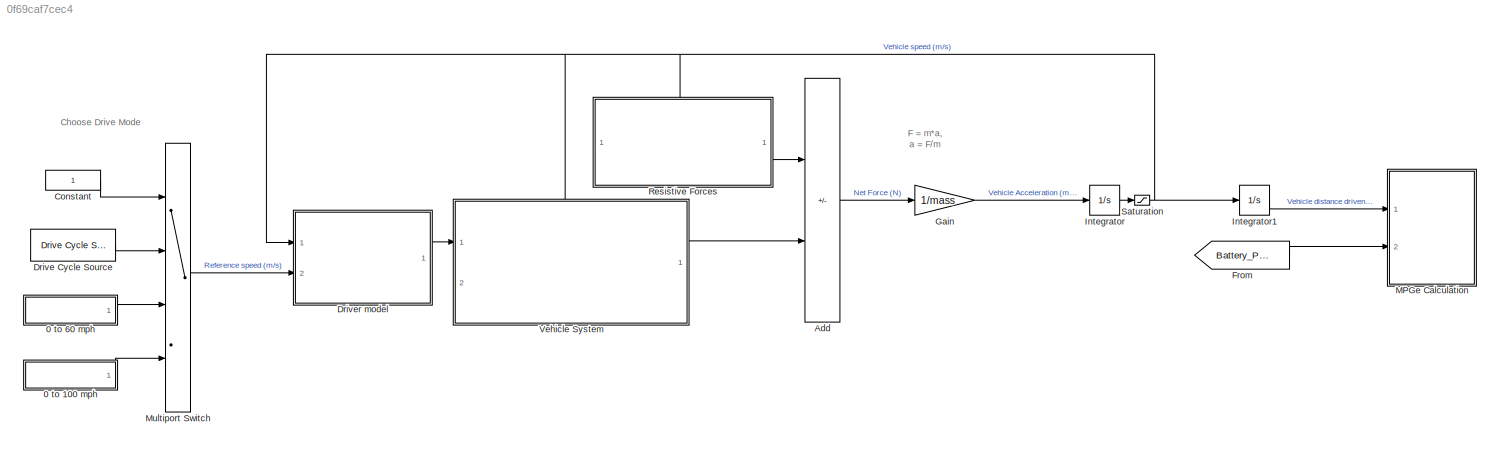
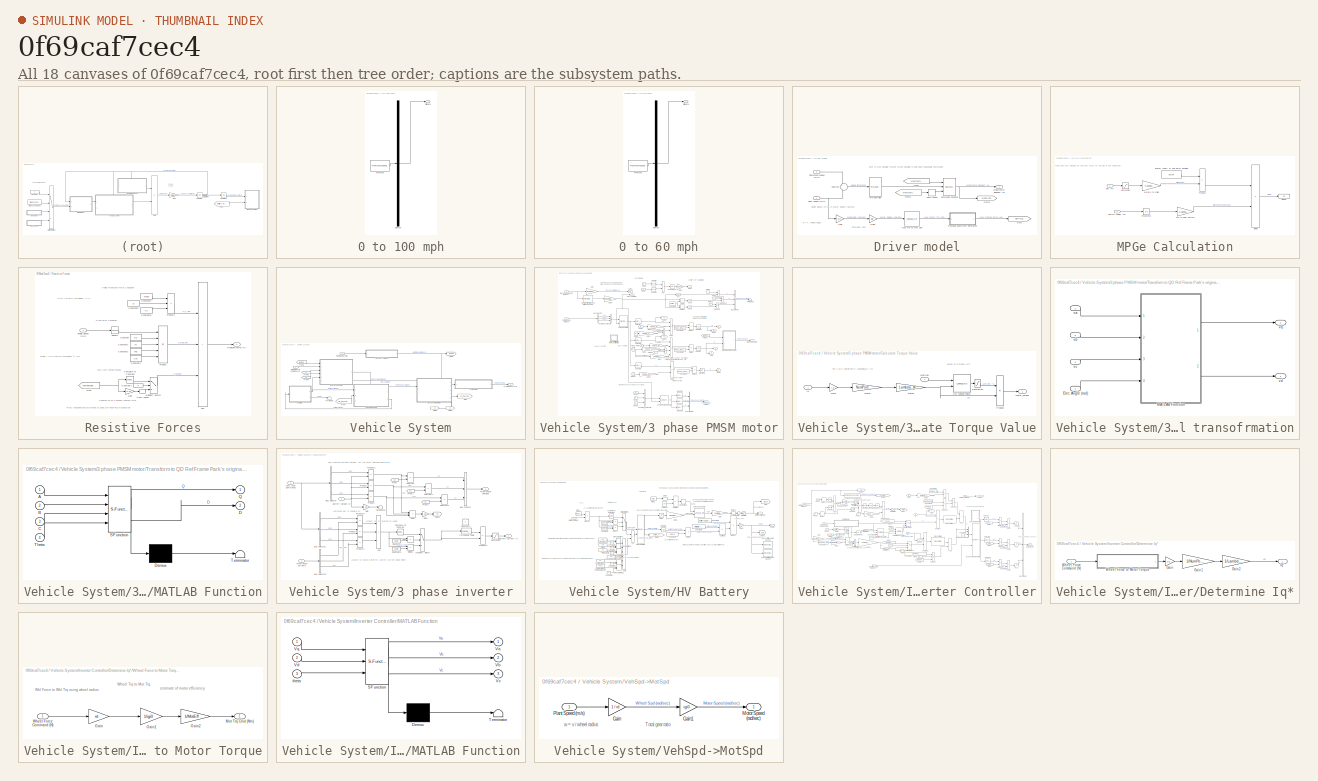
[diagram: thumbnail index - all 18 canvases of the model, root first then tree order]
MODEL slx_0f69caf7cec4
KIND model
CONFIG AbsTol = auto
CONFIG EnableMultiTasking = off
CONFIG FixedStep = auto
CONFIG MaxStep = auto
CONFIG MinStep = auto
CONFIG RelTol = 1e-3
CONFIG SampleTimeConstraint = Unconstrained
CONFIG SolverName = VariableStepAuto
CONFIG StartTime = 0
CONFIG StopTime = 1200
BLOCK [SubSystem] 0 to 100 mph
  ClipboardFcn = sigbuilder_block('clipboard');
  CloseFcn = sigbuilder_block('close');
  ContinueFcn = sigbuilder_block('continue');
  CopyFcn = sigbuilder_block('copy');
  DeleteFcn = sigbuilder_block('delete');
  LoadFcn = sigbuilder_block('load');
  MaskHideContents = on
  ModelCloseFcn = sigbuilder_block('modelClose');
  NameChangeFcn = sigbuilder_block('namechange');
  OpenFcn = sigbuilder_block('open',[437.6 199.2 550.4 400 ]);
  PauseFcn = sigbuilder_block('pause');
  Ports = [0, 1]
  PreSaveFcn = sigbuilder_block('preSave');
  RequestExecContextInheritance = off
  StartFcn = sigbuilder_block('start');
  StopFcn = sigbuilder_block('stop');
  Tag = STV Subsys
BLOCK [Demux] 0 to 100 mph/Demux
  DisplayOption = none
  Outputs = 1
  Ports = [1, 1]
  Tag = STV Demux
BLOCK [FromWorkspace] 0 to 100 mph/FromWs
  Tag = STV FromWs
  VariableName = tuvar
BLOCK [Outport] 0 to 100 mph/Signal 1
  Tag = STV Outport
BLOCK [SubSystem] 0 to 60 mph
  ClipboardFcn = sigbuilder_block('clipboard');
  CloseFcn = sigbuilder_block('close');
  ContinueFcn = sigbuilder_block('continue');
  CopyFcn = sigbuilder_block('copy');
  DeleteFcn = sigbuilder_block('delete');
  LoadFcn = sigbuilder_block('load');
  MaskHideContents = on
  ModelCloseFcn = sigbuilder_block('modelClose');
  NameChangeFcn = sigbuilder_block('namechange');
  OpenFcn = sigbuilder_block('open',[437.6 199.2 612.4 400 ]);
  PauseFcn = sigbuilder_block('pause');
  Ports = [0, 1]
  PreSaveFcn = sigbuilder_block('preSave');
  RequestExecContextInheritance = off
  StartFcn = sigbuilder_block('start');
  StopFcn = sigbuilder_block('stop');
  Tag = STV Subsys
BLOCK [Demux] 0 to 60 mph/Demux
  DisplayOption = none
  Outputs = 1
  Ports = [1, 1]
  Tag = STV Demux
BLOCK [FromWorkspace] 0 to 60 mph/FromWs
  Tag = STV FromWs
  VariableName = tuvar
BLOCK [Outport] 0 to 60 mph/Signal 1
  Tag = STV Outport
BLOCK [Sum] Add
  IconShape = rectangular
  Inputs = -+
  Ports = [2, 1]
BLOCK [Constant] Constant
BLOCK [Reference] Drive Cycle Source  REF=autolibshared/Drive Cycle Source
  AttributesFormatString = %<cycleVar> (%<tfinal>)
  Ports = [0, 1]
  SourceBlock = autolibshared/Drive Cycle Source
  SourceProductBaseCode = PW,DR,MT,UV,VE
  SourceType = Drive Cycle Source
BLOCK [SubSystem] Driver model
  Ports = [2, 1]
  RequestExecContextInheritance = off
BLOCK [From] Driver model/From
  GotoTag = MaxTractiveForce
BLOCK [From] Driver model/From1
  GotoTag = MaxTractiveForce
BLOCK [Gain] Driver model/Gain
  Gain = 1 / rd
BLOCK [Gain] Driver model/Gain1
  Gain = igi0
BLOCK [Goto] Driver model/Goto
  GotoTag = MaxTractiveForce
BLOCK [Goto] Driver model/Goto1
  GotoTag = WhlForceReq
  TagVisibility = global
BLOCK [Lookup_n-D] Driver model/Max Trq vs Mot Spd
  BreakpointsForDimension1 = MotSpdBrkPts
  InputPortMap = u0
  InternalRulePriority = Speed
  NumberOfTableDimensions = 1
  Ports = [1, 1]
  RndMeth = Simplest
  Table = MotTrqPts
BLOCK [Reference] Driver model/PID Controller  REF=pid_lib/PID Controller
  Ports = [1, 1]
  SourceBlock = pid_lib/PID Controller
  SourceProductBaseCode = SL
  SourceType = PID 1dof
BLOCK [Inport] Driver model/Plant speed (m//s)
BLOCK [Inport] Driver model/Reference speed (m//s)
  Port = 2
BLOCK [Reference] Driver model/Saturation Dynamic  REF=simulink/Discontinuities/Saturation
Dynamic
  Ports = [3, 1]
  SourceBlock = simulink/Discontinuities/Saturation\nDynamic
  SourceProductBaseCode = SL
  SourceType = Saturation Dynamic
BLOCK [Sum] Driver model/Subtract
  Inputs = +-
  Ports = [2, 1]
BLOCK [SubSystem] Driver model/Transaxle Subsystem Reference
  Ports = [1, 1]
  ReferencedSubsystem = Transaxle
  RequestExecContextInheritance = off
  ShowPortLabels = none
BLOCK [UnaryMinus] Driver model/Unary Minus
BLOCK [Outport] Driver model/Wheel Force Request (N)
BLOCK [From] From
  GotoTag = Battery_Power
  TagVisibility = global
BLOCK [Gain] Gain
  Gain = 1/mass
BLOCK [Integrator] Integrator
  Ports = [1, 1]
BLOCK [Integrator] Integrator1
  Ports = [1, 1]
BLOCK [SubSystem] MPGe Calculation
  Ports = [2]
  RequestExecContextInheritance = off
BLOCK [Inport] MPGe Calculation/Battery Power (W)
  Port = 2
BLOCK [Display] MPGe Calculation/Display
  Decimation = 1
  Ports = [1]
BLOCK [Product] MPGe Calculation/Divide
  Inputs = */
  Ports = [2, 1]
BLOCK [Integrator] MPGe Calculation/Integrator
  Ports = [1, 1]
BLOCK [Gain] MPGe Calculation/Meters to miles
  Gain = 0.000621371
BLOCK [Product] MPGe Calculation/Product
  Ports = [2, 1]
BLOCK [Saturate] MPGe Calculation/Saturation
  LowerLimit = 0
  UpperLimit = inf
BLOCK [Gain] MPGe Calculation/Ws to kwhr battery
  Gain = 1/3600000
BLOCK [Inport] MPGe Calculation/dist (m)
BLOCK [Constant] MPGe Calculation/energy (kwhr) of one gal of gasoline
  Value = 34.04
BLOCK [MultiPortSwitch] Multiport Switch
  InputSameDT = off
  Ports = [4, 1]
  SaturateOnIntegerOverflow = off
BLOCK [SubSystem] Resistive Forces
  PortSchema = {"entries":[{"content":{"sides":[{"content":{"connectorIds":[]},"type":"ConnectorPlacement.EquallySpacedRectSide","uuid":"46fb1114-af3c-4ad6-a60f-2fe0fb91b046"},{"content":{"connectorIds":["Out1"],"side":"RIGHT"},"type":"ConnectorPlacement.EquallySpacedRectSide","uuid":"342c2ae1-b222-4ad6-a5d9-9f1c740209aa"},{"content":{"connectorIds":["In1"],"side":"TOP"},"type":"ConnectorPlacement.EquallySpacedR...<+240ch>
  Ports = [1, 1]
  RequestExecContextInheritance = off
BLOCK [Sum] Resistive Forces/Add
  IconShape = rectangular
  Inputs = +++
  Ports = [3, 1]
BLOCK [Reference] Resistive Forces/Compare To Constant  REF=simulink/Logic and Bit
Operations/Compare
To Constant
  Ports = [1, 1]
  SourceBlock = simulink/Logic and Bit\nOperations/Compare\nTo Constant
  SourceProductBaseCode = SL
  SourceType = Compare To Constant
BLOCK [Constant] Resistive Forces/Constant
  Value = 1/2
BLOCK [Constant] Resistive Forces/Constant1
  Value = Av
BLOCK [Constant] Resistive Forces/Constant2
  Value = rho
BLOCK [Constant] Resistive Forces/Constant3
  Value = Cd
BLOCK [Constant] Resistive Forces/Constant4
  Value = mass
BLOCK [Constant] Resistive Forces/Constant5
  Value = g
BLOCK [Constant] Resistive Forces/Constant6
  Value = Cr
BLOCK [Constant] Resistive Forces/Constant7
  Value = 0
BLOCK [From] Resistive Forces/From
  GotoTag = WhlForceReq
  TagVisibility = global
BLOCK [Gain] Resistive Forces/Gain
  Gain = 0.76
BLOCK [MultiPortSwitch] Resistive Forces/Multiport Switch
  DataPortOrder = Zero-based contiguous
  InputSameDT = off
  Inputs = 2
  Ports = [3, 1]
  SaturateOnIntegerOverflow = off
  zeroidx = on
BLOCK [Product] Resistive Forces/Product
  Inputs = 5
  Ports = [5, 1]
BLOCK [Product] Resistive Forces/Product1
  Inputs = 3
  Ports = [3, 1]
BLOCK [Outport] Resistive Forces/Resistive Force (N)
BLOCK [Math] Resistive Forces/Square
  Operator = square
  Ports = [1, 1]
BLOCK [UnaryMinus] Resistive Forces/Unary Minus
BLOCK [Inport] Resistive Forces/Vehicle Speed (m//s)
BLOCK [Saturate] Saturation
  LowerLimit = 0
  UpperLimit = inf
BLOCK [SubSystem] Vehicle System
  PortSchema = {"entries":[{"content":{"sides":[{"content":{"connectorIds":["In1"]},"type":"ConnectorPlacement.EquallySpacedRectSide","uuid":"abca09bb-aa9b-45d5-be79-2177664d57d3"},{"content":{"connectorIds":["Out1"],"side":"RIGHT"},"type":"ConnectorPlacement.EquallySpacedRectSide","uuid":"b4201239-485d-45a8-9291-64609474ff69"},{"content":{"connectorIds":["In2"],"side":"TOP"},"type":"ConnectorPlacement.EquallySp...<+245ch>
  Ports = [2, 1]
  RequestExecContextInheritance = off
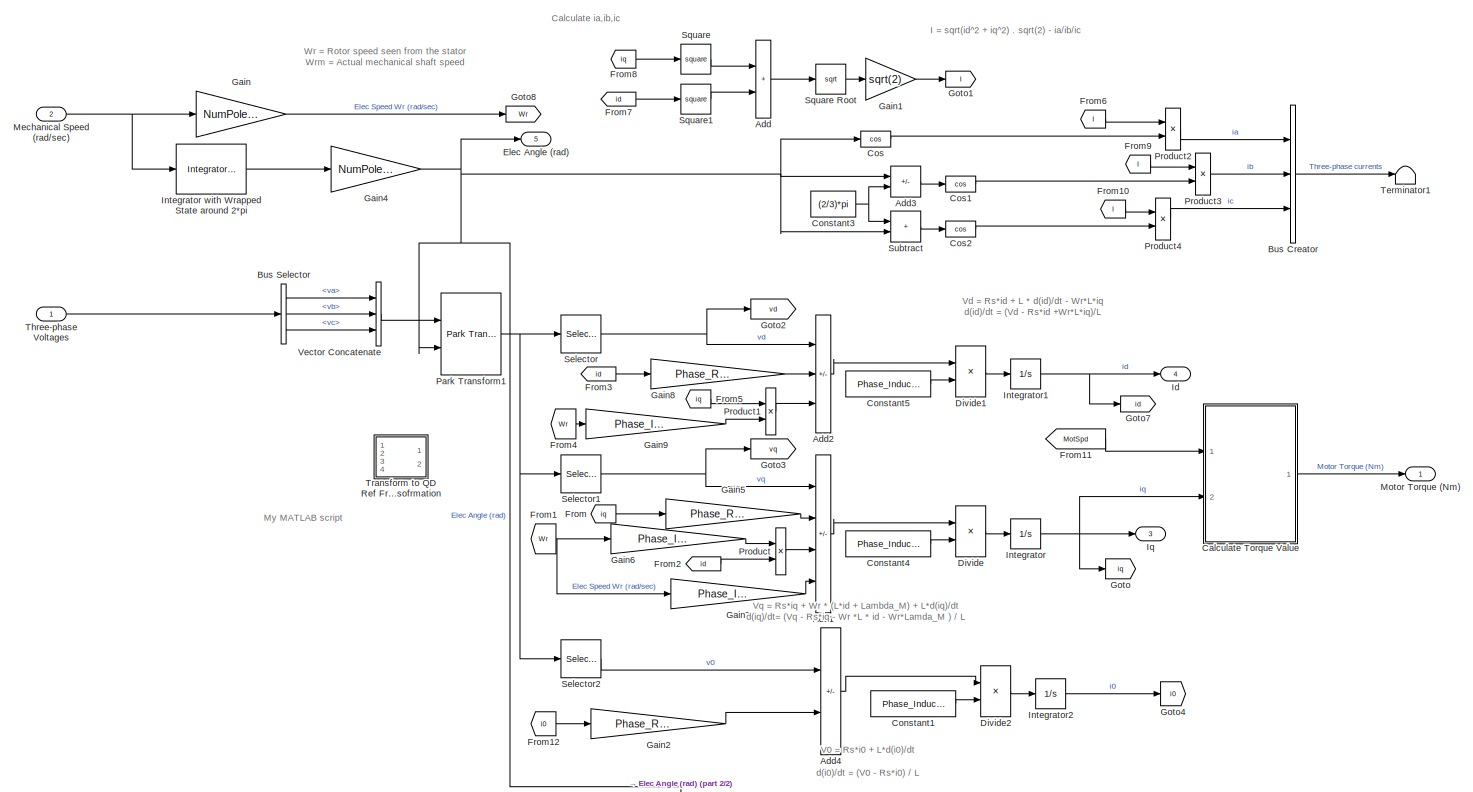
[diagram: Vehicle System/3 phase PMSM motor - part 1/2, most of the canvas]
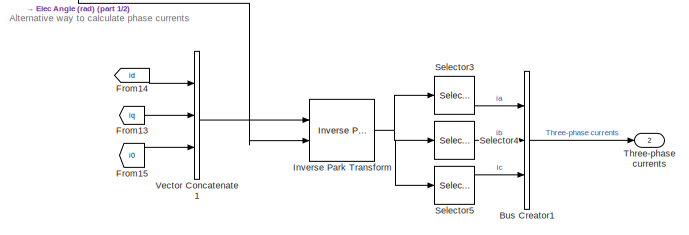
[diagram: Vehicle System/3 phase PMSM motor - part 2/2, bottom center region]
BLOCK [SubSystem] Vehicle System/3 phase PMSM motor
  PortSchema = {"entries":[{"content":{"sides":[{"content":{"connectorIds":["In1"]},"type":"ConnectorPlacement.EquallySpacedRectSide","uuid":"126b70eb-255c-48da-b14a-59d51f4de6ab"},{"content":{"connectorIds":["Out1","Out2"],"side":"RIGHT"},"type":"ConnectorPlacement.EquallySpacedRectSide","uuid":"d32f0671-953a-483c-9d61-f5cd187321ce"},{"content":{"connectorIds":["Out5","In2"],"side":"TOP"},"type":"ConnectorPlace...<+416ch>
  Ports = [2, 5]
  RequestExecContextInheritance = off
BLOCK [Sum] Vehicle System/3 phase PMSM motor/Add
  IconShape = rectangular
  Ports = [2, 1]
BLOCK [Sum] Vehicle System/3 phase PMSM motor/Add1
  IconShape = rectangular
  Inputs = +---
  Ports = [4, 1]
BLOCK [Sum] Vehicle System/3 phase PMSM motor/Add2
  IconShape = rectangular
  Inputs = +-+
  Ports = [3, 1]
BLOCK [Sum] Vehicle System/3 phase PMSM motor/Add3
  IconShape = rectangular
  Inputs = +-
  Ports = [2, 1]
BLOCK [Sum] Vehicle System/3 phase PMSM motor/Add4
  IconShape = rectangular
  Inputs = +-
  Ports = [2, 1]
BLOCK [BusCreator] Vehicle System/3 phase PMSM motor/Bus Creator
  DisplayOption = bar
  InheritFromInputs = on
  Inputs = 3
  Ports = [3, 1]
BLOCK [BusCreator] Vehicle System/3 phase PMSM motor/Bus Creator1
  DisplayOption = bar
  InheritFromInputs = on
  Inputs = 3
  Ports = [3, 1]
BLOCK [BusSelector] Vehicle System/3 phase PMSM motor/Bus Selector
  OutputSignals = va,vb,vc
  Ports = [1, 3]
BLOCK [SubSystem] Vehicle System/3 phase PMSM motor/Calculate Torque Value
  Ports = [2, 1]
  RequestExecContextInheritance = off
BLOCK [Lookup_n-D] Vehicle System/3 phase PMSM motor/Calculate Torque Value/2-D Lookup Table
  BreakpointsForDimension1 = Eff_MotSpdBrkPts
  BreakpointsForDimension2 = Eff_MotTrqBrkPts
  InputPortMap = u0,u1
  InternalRulePriority = Speed
  Ports = [2, 1]
  RndMeth = Simplest
  Table = Eff_MotorMap
BLOCK [Gain] Vehicle System/3 phase PMSM motor/Calculate Torque Value/Gain
  Gain = 1.5
BLOCK [Gain] Vehicle System/3 phase PMSM motor/Calculate Torque Value/Gain2
  Gain = NumPolePairs
BLOCK [Gain] Vehicle System/3 phase PMSM motor/Calculate Torque Value/Gain3
  Gain = Lambda_M
BLOCK [Inport] Vehicle System/3 phase PMSM motor/Calculate Torque Value/MotSpd
BLOCK [Outport] Vehicle System/3 phase PMSM motor/Calculate Torque Value/Motor_Torque
BLOCK [Product] Vehicle System/3 phase PMSM motor/Calculate Torque Value/Product
  Ports = [2, 1]
BLOCK [Saturate] Vehicle System/3 phase PMSM motor/Calculate Torque Value/Saturation
  LowerLimit = 0.45
  UpperLimit = 0.958
BLOCK [Inport] Vehicle System/3 phase PMSM motor/Calculate Torque Value/iq
  Port = 2
BLOCK [Constant] Vehicle System/3 phase PMSM motor/Constant1
  Value = Phase_Inductance
BLOCK [Constant] Vehicle System/3 phase PMSM motor/Constant3
  Value = (2/3)*pi
BLOCK [Constant] Vehicle System/3 phase PMSM motor/Constant4
  Value = Phase_Inductance
BLOCK [Constant] Vehicle System/3 phase PMSM motor/Constant5
  Value = Phase_Inductance
BLOCK [Trigonometry] Vehicle System/3 phase PMSM motor/Cos
  Operator = cos
  Ports = [1, 1]
BLOCK [Trigonometry] Vehicle System/3 phase PMSM motor/Cos1
  Operator = cos
  Ports = [1, 1]
BLOCK [Trigonometry] Vehicle System/3 phase PMSM motor/Cos2
  Operator = cos
  Ports = [1, 1]
BLOCK [Product] Vehicle System/3 phase PMSM motor/Divide
  Inputs = */
  Ports = [2, 1]
BLOCK [Product] Vehicle System/3 phase PMSM motor/Divide1
  Inputs = */
  Ports = [2, 1]
BLOCK [Product] Vehicle System/3 phase PMSM motor/Divide2
  Inputs = */
  Ports = [2, 1]
BLOCK [Outport] Vehicle System/3 phase PMSM motor/Elec Angle (rad)
  Port = 5
BLOCK [From] Vehicle System/3 phase PMSM motor/From
  GotoTag = iq
BLOCK [From] Vehicle System/3 phase PMSM motor/From1
  GotoTag = Wr
BLOCK [From] Vehicle System/3 phase PMSM motor/From10
  GotoTag = I
  TagVisibility = global
BLOCK [From] Vehicle System/3 phase PMSM motor/From11
  GotoTag = MotSpd
  TagVisibility = global
BLOCK [From] Vehicle System/3 phase PMSM motor/From12
  GotoTag = i0
BLOCK [From] Vehicle System/3 phase PMSM motor/From13
  GotoTag = iq
BLOCK [From] Vehicle System/3 phase PMSM motor/From14
  GotoTag = id
BLOCK [From] Vehicle System/3 phase PMSM motor/From15
  GotoTag = i0
BLOCK [From] Vehicle System/3 phase PMSM motor/From2
  GotoTag = id
BLOCK [From] Vehicle System/3 phase PMSM motor/From3
  GotoTag = id
BLOCK [From] Vehicle System/3 phase PMSM motor/From4
  GotoTag = Wr
BLOCK [From] Vehicle System/3 phase PMSM motor/From5
  GotoTag = iq
BLOCK [From] Vehicle System/3 phase PMSM motor/From6
  GotoTag = I
  TagVisibility = global
BLOCK [From] Vehicle System/3 phase PMSM motor/From7
  GotoTag = id
BLOCK [From] Vehicle System/3 phase PMSM motor/From8
  GotoTag = iq
BLOCK [From] Vehicle System/3 phase PMSM motor/From9
  GotoTag = I
  TagVisibility = global
BLOCK [Gain] Vehicle System/3 phase PMSM motor/Gain
  Gain = NumPolePairs
  OutDataTypeStr = Inherit: Same as input
  ParamDataTypeStr = Inherit: Same as input
  SaturateOnIntegerOverflow = on
BLOCK [Gain] Vehicle System/3 phase PMSM motor/Gain1
  Gain = sqrt(2)
BLOCK [Gain] Vehicle System/3 phase PMSM motor/Gain2
  Gain = Phase_Resistance
BLOCK [Gain] Vehicle System/3 phase PMSM motor/Gain4
  Gain = NumPolePairs
  OutDataTypeStr = Inherit: Same as input
  ParamDataTypeStr = Inherit: Same as input
  SaturateOnIntegerOverflow = on
BLOCK [Gain] Vehicle System/3 phase PMSM motor/Gain5
  Gain = Phase_Resistance
BLOCK [Gain] Vehicle System/3 phase PMSM motor/Gain6
  Gain = Phase_Inductance
BLOCK [Gain] Vehicle System/3 phase PMSM motor/Gain7
  Gain = Phase_Inductance
BLOCK [Gain] Vehicle System/3 phase PMSM motor/Gain8
  Gain = Phase_Resistance
BLOCK [Gain] Vehicle System/3 phase PMSM motor/Gain9
  Gain = Phase_Inductance
BLOCK [Goto] Vehicle System/3 phase PMSM motor/Goto
  GotoTag = iq
BLOCK [Goto] Vehicle System/3 phase PMSM motor/Goto1
  GotoTag = I
  TagVisibility = global
BLOCK [Goto] Vehicle System/3 phase PMSM motor/Goto2
  GotoTag = vd
  TagVisibility = global
BLOCK [Goto] Vehicle System/3 phase PMSM motor/Goto3
  GotoTag = vq
  TagVisibility = global
BLOCK [Goto] Vehicle System/3 phase PMSM motor/Goto4
  GotoTag = i0
BLOCK [Goto] Vehicle System/3 phase PMSM motor/Goto7
  GotoTag = id
BLOCK [Goto] Vehicle System/3 phase PMSM motor/Goto8
  GotoTag = Wr
BLOCK [Outport] Vehicle System/3 phase PMSM motor/Id
  Port = 4
BLOCK [Integrator] Vehicle System/3 phase PMSM motor/Integrator
  Ports = [1, 1]
BLOCK [Reference] Vehicle System/3 phase PMSM motor/Integrator with Wrapped State around 2*pi  REF=eeGeneralControl/Integrator with
Wrapped State
(Discrete or Continuous)
  Ports = [1, 1]
  SourceBlock = eeGeneralControl/Integrator with\nWrapped State\n(Discrete or Continuous)
  SourceProductBaseCode = PS
  SourceType = Integrator with Wrapped State (Discrete or Continuous)
BLOCK [Integrator] Vehicle System/3 phase PMSM motor/Integrator1
  Ports = [1, 1]
BLOCK [Integrator] Vehicle System/3 phase PMSM motor/Integrator2
  Ports = [1, 1]
BLOCK [Reference] Vehicle System/3 phase PMSM motor/Inverse Park Transform  REF=eeTransforms/Inverse
Park Transform
  Ports = [2, 1]
  SourceBlock = eeTransforms/Inverse\nPark Transform
  SourceProductBaseCode = PS
  SourceType = Inverse Park Transform
BLOCK [Outport] Vehicle System/3 phase PMSM motor/Iq
  Port = 3
BLOCK [Inport] Vehicle System/3 phase PMSM motor/Mechanical Speed (rad//sec)
  Port = 2
BLOCK [Outport] Vehicle System/3 phase PMSM motor/Motor Torque (Nm)
  NameLocation = top
BLOCK [Reference] Vehicle System/3 phase PMSM motor/Park Transform1  REF=eeTransforms/Park Transform
  Ports = [2, 1]
  SourceBlock = eeTransforms/Park Transform
  SourceProductBaseCode = PS
  SourceType = Park Transform
BLOCK [Product] Vehicle System/3 phase PMSM motor/Product
  Ports = [2, 1]
BLOCK [Product] Vehicle System/3 phase PMSM motor/Product1
  Ports = [2, 1]
BLOCK [Product] Vehicle System/3 phase PMSM motor/Product2
  Ports = [2, 1]
BLOCK [Product] Vehicle System/3 phase PMSM motor/Product3
  Ports = [2, 1]
BLOCK [Product] Vehicle System/3 phase PMSM motor/Product4
  Ports = [2, 1]
BLOCK [Selector] Vehicle System/3 phase PMSM motor/Selector
  IndexOptions = Index vector (dialog)
  Indices = [1]
  InputPortWidth = 3
  OutputSizes = 1
  Ports = [1, 1]
BLOCK [Selector] Vehicle System/3 phase PMSM motor/Selector1
  IndexOptions = Index vector (dialog)
  Indices = [2]
  InputPortWidth = 3
  OutputSizes = 1
  Ports = [1, 1]
BLOCK [Selector] Vehicle System/3 phase PMSM motor/Selector2
  IndexOptions = Index vector (dialog)
  Indices = [3]
  InputPortWidth = 3
  OutputSizes = 1
  Ports = [1, 1]
BLOCK [Selector] Vehicle System/3 phase PMSM motor/Selector3
  IndexOptions = Index vector (dialog)
  Indices = [1]
  InputPortWidth = 3
  OutputSizes = 1
  Ports = [1, 1]
BLOCK [Selector] Vehicle System/3 phase PMSM motor/Selector4
  IndexOptions = Index vector (dialog)
  Indices = [2]
  InputPortWidth = 3
  OutputSizes = 1
  Ports = [1, 1]
BLOCK [Selector] Vehicle System/3 phase PMSM motor/Selector5
  IndexOptions = Index vector (dialog)
  Indices = [3]
  InputPortWidth = 3
  OutputSizes = 1
  Ports = [1, 1]
BLOCK [Math] Vehicle System/3 phase PMSM motor/Square
  Operator = square
  Ports = [1, 1]
BLOCK [Sqrt] Vehicle System/3 phase PMSM motor/Square Root
BLOCK [Math] Vehicle System/3 phase PMSM motor/Square1
  Operator = square
  Ports = [1, 1]
BLOCK [Sum] Vehicle System/3 phase PMSM motor/Subtract
  IconShape = rectangular
  Ports = [2, 1]
BLOCK [Terminator] Vehicle System/3 phase PMSM motor/Terminator1
BLOCK [Inport] Vehicle System/3 phase PMSM motor/Three-phase Voltages
BLOCK [Outport] Vehicle System/3 phase PMSM motor/Three-phase currents
  Port = 2
BLOCK [SubSystem] Vehicle System/3 phase PMSM motor/Transform to QD Ref Frame Park's original transofrmation
  Commented = on
  PortSchema = {"entries":[{"content":{"sides":[{"content":{"connectorIds":["In1","In2","In3"]},"type":"ConnectorPlacement.EquallySpacedRectSide","uuid":"2801e983-a57d-4ab3-98a5-7942793cacf2"},{"content":{"connectorIds":["Out1","Out2"],"side":"RIGHT"},"type":"ConnectorPlacement.EquallySpacedRectSide","uuid":"45968e2a-a91b-477b-96f4-64acf4b83dda"},{"content":{"connectorIds":["In4"],"side":"TOP"},"type":"Connector...<+264ch>
  Ports = [4, 2]
  RequestExecContextInheritance = off
BLOCK [Inport] Vehicle System/3 phase PMSM motor/Transform to QD Ref Frame Park's original transofrmation/Elec Angle (rad)
  Port = 4
BLOCK [SubSystem] Vehicle System/3 phase PMSM motor/Transform to QD Ref Frame Park's original transofrmation/MATLAB Function
  ErrorFcn = Stateflow.Translate.translate
  PermitHierarchicalResolution = ExplicitOnly
  Ports = [4, 2]
  RequestExecContextInheritance = off
  SFBlockType = MATLAB Function
  TreatAsAtomicUnit = on
BLOCK [Demux] Vehicle System/3 phase PMSM motor/Transform to QD Ref Frame Park's original transofrmation/MATLAB Function/ Demux 
  Outputs = 1
  Ports = [1, 1]
BLOCK [S-Function] Vehicle System/3 phase PMSM motor/Transform to QD Ref Frame Park's original transofrmation/MATLAB Function/ SFunction 
  EnableBusSupport = on
  FunctionName = sf_sfun
  PortCounts = [4 3]
  Ports = [4, 3]
  SFcnIsStateOwnerBlock = off
  SFunctionDeploymentMode = off
  Tag = Stateflow S-Function 2
BLOCK [Terminator] Vehicle System/3 phase PMSM motor/Transform to QD Ref Frame Park's original transofrmation/MATLAB Function/ Terminator 
BLOCK [Inport] Vehicle System/3 phase PMSM motor/Transform to QD Ref Frame Park's original transofrmation/MATLAB Function/A
BLOCK [Inport] Vehicle System/3 phase PMSM motor/Transform to QD Ref Frame Park's original transofrmation/MATLAB Function/B
  Port = 2
BLOCK [Inport] Vehicle System/3 phase PMSM motor/Transform to QD Ref Frame Park's original transofrmation/MATLAB Function/C
  Port = 3
BLOCK [Outport] Vehicle System/3 phase PMSM motor/Transform to QD Ref Frame Park's original transofrmation/MATLAB Function/D
  Port = 2
BLOCK [Outport] Vehicle System/3 phase PMSM motor/Transform to QD Ref Frame Park's original transofrmation/MATLAB Function/Q
BLOCK [Inport] Vehicle System/3 phase PMSM motor/Transform to QD Ref Frame Park's original transofrmation/MATLAB Function/Theta
  Port = 4
BLOCK [Inport] Vehicle System/3 phase PMSM motor/Transform to QD Ref Frame Park's original transofrmation/va
BLOCK [Inport] Vehicle System/3 phase PMSM motor/Transform to QD Ref Frame Park's original transofrmation/vb
  Port = 2
BLOCK [Inport] Vehicle System/3 phase PMSM motor/Transform to QD Ref Frame Park's original transofrmation/vc
  Port = 3
BLOCK [Outport] Vehicle System/3 phase PMSM motor/Transform to QD Ref Frame Park's original transofrmation/vd
BLOCK [Outport] Vehicle System/3 phase PMSM motor/Transform to QD Ref Frame Park's original transofrmation/vq
  Port = 2
BLOCK [Concatenate] Vehicle System/3 phase PMSM motor/Vector Concatenate
  NumInputs = 3
  Ports = [3, 1]
BLOCK [Concatenate] Vehicle System/3 phase PMSM motor/Vector Concatenate1
  NumInputs = 3
  Ports = [3, 1]
BLOCK [SubSystem] Vehicle System/3 phase inverter
  PortSchema = {"entries":[{"content":{"sides":[{"content":{"connectorIds":["In1","In2"]},"type":"ConnectorPlacement.EquallySpacedRectSide","uuid":"4a21ea7b-e427-4998-a010-d9c8d20698f5"},{"content":{"connectorIds":["Out1","Out2"],"side":"RIGHT"},"type":"ConnectorPlacement.EquallySpacedRectSide","uuid":"8123b628-bceb-4e34-b96a-055da3824839"},{"content":{"connectorIds":["In3"],"side":"TOP"},"type":"ConnectorPlacem...<+258ch>
  Ports = [3, 2]
  RequestExecContextInheritance = off
BLOCK [Lookup_n-D] Vehicle System/3 phase inverter/1-D Lookup Table
  BreakpointsForDimension1 = linspace(-50,50,10)
  ExtrapMethod = Clip
  InputPortMap = u0
  InternalRulePriority = Speed
  NumberOfTableDimensions = 1
  Ports = [1, 1]
  RndMeth = Simplest
  Table = [1,1.25,3,4,5.5,6.5,5,3,2.5,1]
  UseLastTableValue = on
BLOCK [Sum] Vehicle System/3 phase inverter/Add
  IconShape = rectangular
  Inputs = +++
  Ports = [3, 1]
BLOCK [Sum] Vehicle System/3 phase inverter/Add1
  IconShape = rectangular
  Inputs = 3
  Ports = [3, 1]
BLOCK [Inport] Vehicle System/3 phase inverter/Battery Voltage (V)
BLOCK [Outport] Vehicle System/3 phase inverter/Battery current (A)
  Port = 2
BLOCK [BusCreator] Vehicle System/3 phase inverter/Bus Creator
  DisplayOption = bar
  InheritFromInputs = on
  Inputs = 3
  Ports = [3, 1]
BLOCK [BusSelector] Vehicle System/3 phase inverter/Bus Selector
  OutputSignals = da,db,dc
  Ports = [1, 3]
BLOCK [BusSelector] Vehicle System/3 phase inverter/Bus Selector1
  OutputSignals = da,db,dc
  Ports = [1, 3]
BLOCK [BusSelector] Vehicle System/3 phase inverter/Bus Selector2
  OutputSignals = ia,ib,ic
  Ports = [1, 3]
BLOCK [Reference] Vehicle System/3 phase inverter/Compare To Constant  REF=simulink/Logic and Bit
Operations/Compare
To Constant
  Ports = [1, 1]
  SourceBlock = simulink/Logic and Bit\nOperations/Compare\nTo Constant
  SourceProductBaseCode = SL
  SourceType = Compare To Constant
BLOCK [Constant] Vehicle System/3 phase inverter/Constant
  Value = InvEff
BLOCK [Constant] Vehicle System/3 phase inverter/Constant1
  Value = InvEff
BLOCK [Constant] Vehicle System/3 phase inverter/Constant2
  Value = 2
BLOCK [Product] Vehicle System/3 phase inverter/Divide
  Inputs = */
  Ports = [2, 1]
BLOCK [Product] Vehicle System/3 phase inverter/Divide1
  Inputs = **
  Ports = [2, 1]
BLOCK [Inport] Vehicle System/3 phase inverter/Duty Cycle Commands
  Port = 3
BLOCK [From] Vehicle System/3 phase inverter/From
  GotoTag = vn
BLOCK [From] Vehicle System/3 phase inverter/From1
  GotoTag = vn
BLOCK [From] Vehicle System/3 phase inverter/From2
  GotoTag = vn
BLOCK [Gain] Vehicle System/3 phase inverter/Gain
  Gain = 0.5
BLOCK [Gain] Vehicle System/3 phase inverter/Gain1
  Gain = 1/3
BLOCK [Goto] Vehicle System/3 phase inverter/Goto
  GotoTag = vn
BLOCK [MultiPortSwitch] Vehicle System/3 phase inverter/Multiport Switch
  DataPortOrder = Zero-based contiguous
  InputSameDT = off
  Inputs = 2
  Ports = [3, 1]
  SaturateOnIntegerOverflow = off
  zeroidx = on
BLOCK [Product] Vehicle System/3 phase inverter/Product
  Ports = [2, 1]
BLOCK [Product] Vehicle System/3 phase inverter/Product1
  Ports = [2, 1]
BLOCK [Product] Vehicle System/3 phase inverter/Product2
  Ports = [2, 1]
BLOCK [Product] Vehicle System/3 phase inverter/Product3
  Ports = [2, 1]
BLOCK [Product] Vehicle System/3 phase inverter/Product4
  Ports = [2, 1]
BLOCK [Product] Vehicle System/3 phase inverter/Product5
  Ports = [2, 1]
BLOCK [Product] Vehicle System/3 phase inverter/Product6
  Ports = [2, 1]
BLOCK [Saturate] Vehicle System/3 phase inverter/Saturation
  LowerLimit = -450
  UpperLimit = 600
BLOCK [Sum] Vehicle System/3 phase inverter/Subtract
  IconShape = rectangular
  Inputs = +-
  Ports = [2, 1]
BLOCK [Sum] Vehicle System/3 phase inverter/Subtract1
  IconShape = rectangular
  Inputs = +-
  Ports = [2, 1]
BLOCK [Sum] Vehicle System/3 phase inverter/Subtract2
  IconShape = rectangular
  Inputs = +-
  Ports = [2, 1]
BLOCK [Terminator] Vehicle System/3 phase inverter/Terminator
BLOCK [Inport] Vehicle System/3 phase inverter/Three-phase Currents
  Port = 2
BLOCK [Outport] Vehicle System/3 phase inverter/Three-phase Voltages
BLOCK [From] Vehicle System/From
  GotoTag = AC_Currents
BLOCK [From] Vehicle System/From1
  GotoTag = MotSpd
  TagVisibility = global
BLOCK [From] Vehicle System/From2
  GotoTag = Iq
BLOCK [From] Vehicle System/From3
  GotoTag = Id
BLOCK [Goto] Vehicle System/Goto
  GotoTag = AC_Currents
BLOCK [Goto] Vehicle System/Goto1
  GotoTag = MotSpd
  TagVisibility = global
BLOCK [Goto] Vehicle System/Goto2
  GotoTag = Id
BLOCK [Goto] Vehicle System/Goto3
  GotoTag = Iq
BLOCK [SubSystem] Vehicle System/HV Battery
  Ports = [1, 2]
  RequestExecContextInheritance = off
BLOCK [Saturate] Vehicle System/HV Battery/0 to inf
  LowerLimit = 0
  UpperLimit = inf
  ZeroCross = off
BLOCK [Sum] Vehicle System/HV Battery/Add
  IconShape = rectangular
  Ports = [2, 1]
BLOCK [Sum] Vehicle System/HV Battery/Add1
  IconShape = rectangular
  Inputs = ++++++
  Ports = [6, 1]
BLOCK [Inport] Vehicle System/HV Battery/Battery Current (A)
BLOCK [Outport] Vehicle System/HV Battery/Battery Voltage (V)
BLOCK [Reference] Vehicle System/HV Battery/Check Static Lower Bound  REF=simulink/Model
Verification/Check Static 
Lower Bound
  Description = 15 <= u
  Ports = [1]
  SourceBlock = simulink/Model\nVerification/Check Static \nLower Bound
  SourceProductBaseCode = SL
  SourceType = Checks_SMin
BLOCK [Reference] Vehicle System/HV Battery/Check Static Upper Bound  REF=simulink/Model
Verification/Check Static 
Upper Bound
  Description = u <= 85
  Ports = [1]
  SourceBlock = simulink/Model\nVerification/Check Static \nUpper Bound
  SourceProductBaseCode = SL
  SourceType = Checks_SMax
BLOCK [Reference] Vehicle System/HV Battery/Compare To Constant  REF=simulink/Logic and Bit
Operations/Compare
To Constant
  Ports = [1, 1]
  SourceBlock = simulink/Logic and Bit\nOperations/Compare\nTo Constant
  SourceProductBaseCode = SL
  SourceType = Compare To Constant
BLOCK [Constant] Vehicle System/HV Battery/Constant
  Value = Coul_eff
BLOCK [Constant] Vehicle System/HV Battery/Constant1
  Value = 3.6e+6
BLOCK [Constant] Vehicle System/HV Battery/Constant2
  Value = batteryCapacity
BLOCK [Constant] Vehicle System/HV Battery/Constant3
  Value = initBatteryCapacity
BLOCK [Constant] Vehicle System/HV Battery/Constant4
  SampleTime = -1
  Value = Coul_eff
BLOCK [Constant] Vehicle System/HV Battery/Constant5
  Value = 0
BLOCK [Constant] Vehicle System/HV Battery/Constant6
  Value = 0
BLOCK [Constant] Vehicle System/HV Battery/Constant7
  Value = 0
BLOCK [Constant] Vehicle System/HV Battery/Constant8
  Value = 0
BLOCK [Constant] Vehicle System/HV Battery/Constant9
  Value = 0
BLOCK [Delay] Vehicle System/HV Battery/Delay
  DelayLength = 1
  InitialCondition = initSOC
  InputPortMap = u0
  Ports = [1, 1]
BLOCK [Delay] Vehicle System/HV Battery/Delay1
  DelayLength = 1
  InitialCondition = 650
  InputPortMap = u0
  Ports = [1, 1]
BLOCK [Product] Vehicle System/HV Battery/Divide
  Inputs = */
  Ports = [2, 1]
BLOCK [Product] Vehicle System/HV Battery/Divide1
  Inputs = /*
  Ports = [2, 1]
BLOCK [Product] Vehicle System/HV Battery/Divide2
  Inputs = */
  Ports = [2, 1]
BLOCK [Product] Vehicle System/HV Battery/Divide3
  Inputs = **
  Ports = [2, 1]
BLOCK [Constant] Vehicle System/HV Battery/Fans and Pumps
  Value = 400
BLOCK [Constant] Vehicle System/HV Battery/For full SOC
  Value = 100
BLOCK [From] Vehicle System/HV Battery/From
  GotoTag = BusV
BLOCK [From] Vehicle System/HV Battery/From1
  GotoTag = SOC
BLOCK [Gain] Vehicle System/HV Battery/Gain
  Gain = numCellsSeries
BLOCK [Gain] Vehicle System/HV Battery/Gain1
  Gain = 1/numCellsParallel
BLOCK [Gain] Vehicle System/HV Battery/Gain2
  Gain = 100
BLOCK [Goto] Vehicle System/HV Battery/Goto
  GotoTag = BusV
BLOCK [Goto] Vehicle System/HV Battery/Goto1
  GotoTag = SOC
BLOCK [Goto] Vehicle System/HV Battery/Goto2
  GotoTag = Battery_Power
  TagVisibility = global
BLOCK [Constant] Vehicle System/HV Battery/Heated Windows
  Value = 120
BLOCK [Integrator] Vehicle System/HV Battery/Integrator
  Ports = [1, 1]
BLOCK [Constant] Vehicle System/HV Battery/LEDs
  Value = 50
BLOCK [ManualSwitch] Vehicle System/HV Battery/Manual Switch
  CurrentSetting = 0
BLOCK [ManualSwitch] Vehicle System/HV Battery/Manual Switch1
  CurrentSetting = 0
BLOCK [ManualSwitch] Vehicle System/HV Battery/Manual Switch2
  CurrentSetting = 0
BLOCK [ManualSwitch] Vehicle System/HV Battery/Manual Switch3
  CurrentSetting = 0
BLOCK [ManualSwitch] Vehicle System/HV Battery/Manual Switch4
  CurrentSetting = 0
BLOCK [ManualSwitch] Vehicle System/HV Battery/Manual Switch5
  CurrentSetting = 0
BLOCK [MultiPortSwitch] Vehicle System/HV Battery/Multiport Switch
  DataPortOrder = Zero-based contiguous
  InputSameDT = off
  Inputs = 2
  Ports = [3, 1]
  SaturateOnIntegerOverflow = off
  zeroidx = on
BLOCK [Product] Vehicle System/HV Battery/Product
  Ports = [2, 1]
BLOCK [RateLimiter] Vehicle System/HV Battery/Rate Limiter
  FallingSlewLimit = -8
  InitialCondition = 650
  RisingSlewLimit = 50
  SampleTimeMode = inherited
BLOCK [Outport] Vehicle System/HV Battery/SOC (%)
  Port = 2
BLOCK [Saturate] Vehicle System/HV Battery/Saturation
  LowerLimit = 450
  UpperLimit = 800
BLOCK [Constant] Vehicle System/HV Battery/Seat Heater and Thermal Controls @ full power
  Value = 4800
BLOCK [Sum] Vehicle System/HV Battery/Subtract
  IconShape = rectangular
  Inputs = +-
  Ports = [2, 1]
BLOCK [Sum] Vehicle System/HV Battery/Subtract1
  IconShape = rectangular
  Inputs = +-
  Ports = [2, 1]
BLOCK [UnaryMinus] Vehicle System/HV Battery/Unary Minus
BLOCK [Constant] Vehicle System/HV Battery/User Electronics
  Value = 50
BLOCK [Constant] Vehicle System/HV Battery/Wipers
  Value = 130
BLOCK [Lookup_n-D] Vehicle System/HV Battery/n-D Lookup Table
  BreakpointsForDimension1 = DOD_BrkPts
  BreakpointsForDimension2 = [20, 60, 100, 140, 180]
  BreakpointsForDimension3 = [5, 7]
  InputPortMap = u0,u1
  InternalRulePriority = Speed
  Ports = [2, 1]
  RndMeth = Simplest
  Table = [discCurveV_20W; discCurveV_60W; discCurveV_100W; discCurveV_140W; discCurveV_180W]'
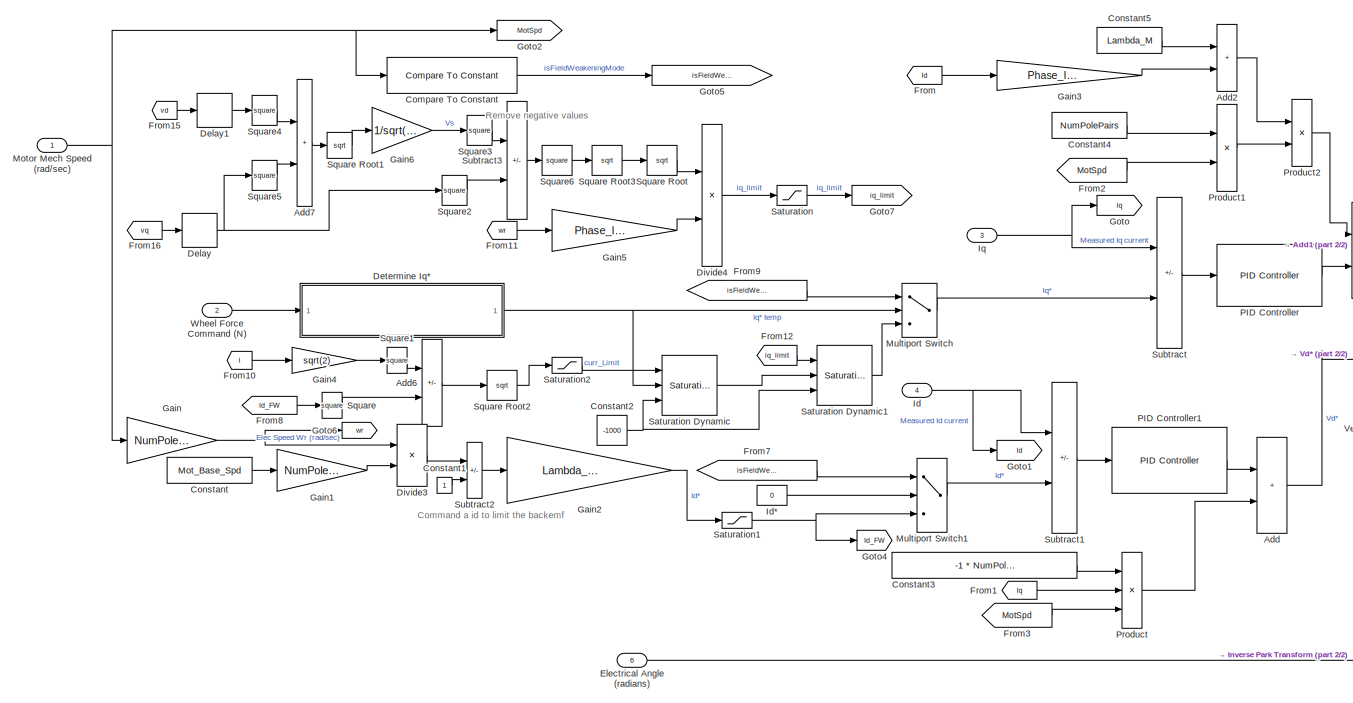
[diagram: Vehicle System/Inverter Controller - part 1/2, center side, full height]
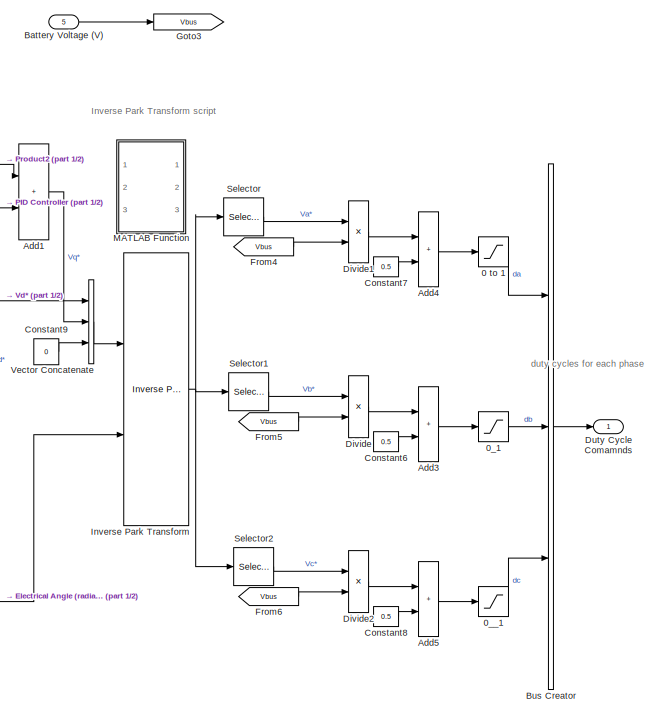
[diagram: Vehicle System/Inverter Controller - part 2/2, right side, full height]
BLOCK [SubSystem] Vehicle System/Inverter Controller
  PortSchema = {"entries":[{"content":{"sides":[{"content":{"connectorIds":["In1","In2","In3","In4","In5"]},"type":"ConnectorPlacement.EquallySpacedRectSide","uuid":"a159613d-1589-490f-82d9-f621fbd385f9"},{"content":{"connectorIds":["In6","Out1"],"side":"RIGHT"},"type":"ConnectorPlacement.EquallySpacedRectSide","uuid":"ebfa1094-5ae7-4107-beda-e02c0b6a3825"},{"content":{"connectorIds":[],"side":"TOP"},"type":"Con...<+270ch>
  Ports = [6, 1]
  RequestExecContextInheritance = off
BLOCK [Saturate] Vehicle System/Inverter Controller/0 to 1
  LowerLimit = 0
  UpperLimit = 1
BLOCK [Saturate] Vehicle System/Inverter Controller/0_1
  LowerLimit = 0
  UpperLimit = 1
BLOCK [Saturate] Vehicle System/Inverter Controller/0__1
  LowerLimit = 0
  UpperLimit = 1
BLOCK [Sum] Vehicle System/Inverter Controller/Add
  IconShape = rectangular
  Ports = [2, 1]
BLOCK [Sum] Vehicle System/Inverter Controller/Add1
  IconShape = rectangular
  Ports = [2, 1]
BLOCK [Sum] Vehicle System/Inverter Controller/Add2
  IconShape = rectangular
  Ports = [2, 1]
BLOCK [Sum] Vehicle System/Inverter Controller/Add3
  IconShape = rectangular
  Ports = [2, 1]
BLOCK [Sum] Vehicle System/Inverter Controller/Add4
  IconShape = rectangular
  Ports = [2, 1]
BLOCK [Sum] Vehicle System/Inverter Controller/Add5
  IconShape = rectangular
  Ports = [2, 1]
BLOCK [Sum] Vehicle System/Inverter Controller/Add6
  IconShape = rectangular
  Inputs = +-
  Ports = [2, 1]
BLOCK [Sum] Vehicle System/Inverter Controller/Add7
  IconShape = rectangular
  Ports = [2, 1]
BLOCK [Inport] Vehicle System/Inverter Controller/Battery Voltage (V)
  Port = 5
BLOCK [BusCreator] Vehicle System/Inverter Controller/Bus Creator
  DisplayOption = bar
  InheritFromInputs = on
  Inputs = 3
  Ports = [3, 1]
BLOCK [Reference] Vehicle System/Inverter Controller/Compare To Constant  REF=simulink/Logic and Bit
Operations/Compare
To Constant
  Ports = [1, 1]
  SourceBlock = simulink/Logic and Bit\nOperations/Compare\nTo Constant
  SourceProductBaseCode = SL
  SourceType = Compare To Constant
BLOCK [Constant] Vehicle System/Inverter Controller/Constant
  Value = Mot_Base_Spd
BLOCK [Constant] Vehicle System/Inverter Controller/Constant1
BLOCK [Constant] Vehicle System/Inverter Controller/Constant2
  Value = -1000
BLOCK [Constant] Vehicle System/Inverter Controller/Constant3
  Value = -1 * NumPolePairs *  Phase_Inductance
BLOCK [Constant] Vehicle System/Inverter Controller/Constant4
  Value = NumPolePairs
BLOCK [Constant] Vehicle System/Inverter Controller/Constant5
  Value = Lambda_M
BLOCK [Constant] Vehicle System/Inverter Controller/Constant6
  Value = 0.5
BLOCK [Constant] Vehicle System/Inverter Controller/Constant7
  Value = 0.5
BLOCK [Constant] Vehicle System/Inverter Controller/Constant8
  Value = 0.5
BLOCK [Constant] Vehicle System/Inverter Controller/Constant9
  Value = 0
BLOCK [Delay] Vehicle System/Inverter Controller/Delay
  DelayLength = 1
  InputPortMap = u0
  Ports = [1, 1]
BLOCK [Delay] Vehicle System/Inverter Controller/Delay1
  DelayLength = 1
  InputPortMap = u0
  Ports = [1, 1]
BLOCK [SubSystem] Vehicle System/Inverter Controller/Determine Iq*
  Ports = [1, 1]
  RequestExecContextInheritance = off
BLOCK [Gain] Vehicle System/Inverter Controller/Determine Iq*/Gain
  Gain = 2/3
BLOCK [Gain] Vehicle System/Inverter Controller/Determine Iq*/Gain1
  Gain = 1/NumPolePairs
BLOCK [Gain] Vehicle System/Inverter Controller/Determine Iq*/Gain2
  Gain = 1/Lambda_M
BLOCK [Outport] Vehicle System/Inverter Controller/Determine Iq*/Iq*
BLOCK [Inport] Vehicle System/Inverter Controller/Determine Iq*/Wheel Force Command (N)
BLOCK [SubSystem] Vehicle System/Inverter Controller/Determine Iq*/Wheel Force to Motor Torque
  Ports = [1, 1]
  RequestExecContextInheritance = off
BLOCK [Gain] Vehicle System/Inverter Controller/Determine Iq*/Wheel Force to Motor Torque/Gain
  Gain = rd
BLOCK [Gain] Vehicle System/Inverter Controller/Determine Iq*/Wheel Force to Motor Torque/Gain1
  Gain = 1/igi0
BLOCK [Gain] Vehicle System/Inverter Controller/Determine Iq*/Wheel Force to Motor Torque/Gain2
  Gain = 1/MotEff
BLOCK [Outport] Vehicle System/Inverter Controller/Determine Iq*/Wheel Force to Motor Torque/Mot Trq Cmd (Nm)
BLOCK [Inport] Vehicle System/Inverter Controller/Determine Iq*/Wheel Force to Motor Torque/Wheel Force Command (N)
BLOCK [Product] Vehicle System/Inverter Controller/Divide
  Inputs = */
  Ports = [2, 1]
BLOCK [Product] Vehicle System/Inverter Controller/Divide1
  Inputs = */
  Ports = [2, 1]
BLOCK [Product] Vehicle System/Inverter Controller/Divide2
  Inputs = */
  Ports = [2, 1]
BLOCK [Product] Vehicle System/Inverter Controller/Divide3
  Inputs = /*
  Ports = [2, 1]
BLOCK [Product] Vehicle System/Inverter Controller/Divide4
  Inputs = */
  Ports = [2, 1]
BLOCK [Outport] Vehicle System/Inverter Controller/Duty Cycle Comamnds
BLOCK [Inport] Vehicle System/Inverter Controller/Electrical Angle (radians)
  Port = 6
BLOCK [From] Vehicle System/Inverter Controller/From
  GotoTag = Id
BLOCK [From] Vehicle System/Inverter Controller/From1
  GotoTag = Iq
BLOCK [From] Vehicle System/Inverter Controller/From10
  GotoTag = I
  TagVisibility = global
BLOCK [From] Vehicle System/Inverter Controller/From11
  GotoTag = wr
BLOCK [From] Vehicle System/Inverter Controller/From12
  GotoTag = iq_limit
BLOCK [From] Vehicle System/Inverter Controller/From15
  GotoTag = vd
  TagVisibility = global
BLOCK [From] Vehicle System/Inverter Controller/From16
  GotoTag = vq
  TagVisibility = global
BLOCK [From] Vehicle System/Inverter Controller/From2
  GotoTag = MotSpd
BLOCK [From] Vehicle System/Inverter Controller/From3
  GotoTag = MotSpd
BLOCK [From] Vehicle System/Inverter Controller/From4
  GotoTag = Vbus
BLOCK [From] Vehicle System/Inverter Controller/From5
  GotoTag = Vbus
BLOCK [From] Vehicle System/Inverter Controller/From6
  GotoTag = Vbus
BLOCK [From] Vehicle System/Inverter Controller/From7
  GotoTag = isFieldWeakeningMode
BLOCK [From] Vehicle System/Inverter Controller/From8
  GotoTag = Id_FW
BLOCK [From] Vehicle System/Inverter Controller/From9
  GotoTag = isFieldWeakeningMode
BLOCK [Gain] Vehicle System/Inverter Controller/Gain
  Gain = NumPolePairs
  OutDataTypeStr = Inherit: Same as input
  ParamDataTypeStr = Inherit: Same as input
  SaturateOnIntegerOverflow = on
BLOCK [Gain] Vehicle System/Inverter Controller/Gain1
  Gain = NumPolePairs
  OutDataTypeStr = Inherit: Same as input
  ParamDataTypeStr = Inherit: Same as input
  SaturateOnIntegerOverflow = on
BLOCK [Gain] Vehicle System/Inverter Controller/Gain2
  Gain = Lambda_M/Phase_Inductance
BLOCK [Gain] Vehicle System/Inverter Controller/Gain3
  Gain = Phase_Inductance
BLOCK [Gain] Vehicle System/Inverter Controller/Gain4
  Gain = sqrt(2)
BLOCK [Gain] Vehicle System/Inverter Controller/Gain5
  Gain = Phase_Inductance
BLOCK [Gain] Vehicle System/Inverter Controller/Gain6
  Gain = 1/sqrt(2)
BLOCK [Goto] Vehicle System/Inverter Controller/Goto
  GotoTag = Iq
BLOCK [Goto] Vehicle System/Inverter Controller/Goto1
  GotoTag = Id
BLOCK [Goto] Vehicle System/Inverter Controller/Goto2
  GotoTag = MotSpd
BLOCK [Goto] Vehicle System/Inverter Controller/Goto3
  GotoTag = Vbus
BLOCK [Goto] Vehicle System/Inverter Controller/Goto4
  GotoTag = Id_FW
BLOCK [Goto] Vehicle System/Inverter Controller/Goto5
  GotoTag = isFieldWeakeningMode
BLOCK [Goto] Vehicle System/Inverter Controller/Goto6
  GotoTag = wr
BLOCK [Goto] Vehicle System/Inverter Controller/Goto7
  GotoTag = iq_limit
BLOCK [Inport] Vehicle System/Inverter Controller/Id
  Port = 4
BLOCK [Constant] Vehicle System/Inverter Controller/Id*
  Value = 0
BLOCK [Reference] Vehicle System/Inverter Controller/Inverse Park Transform  REF=eeTransforms/Inverse
Park Transform
  Ports = [2, 1]
  SourceBlock = eeTransforms/Inverse\nPark Transform
  SourceProductBaseCode = PS
  SourceType = Inverse Park Transform
BLOCK [Inport] Vehicle System/Inverter Controller/Iq
  Port = 3
BLOCK [SubSystem] Vehicle System/Inverter Controller/MATLAB Function
  Commented = on
  ErrorFcn = Stateflow.Translate.translate
  PermitHierarchicalResolution = ExplicitOnly
  Ports = [3, 3]
  RequestExecContextInheritance = off
  SFBlockType = MATLAB Function
  TreatAsAtomicUnit = on
BLOCK [Demux] Vehicle System/Inverter Controller/MATLAB Function/ Demux 
  Outputs = 1
  Ports = [1, 1]
BLOCK [S-Function] Vehicle System/Inverter Controller/MATLAB Function/ SFunction 
  EnableBusSupport = on
  FunctionName = sf_sfun
  PortCounts = [3 4]
  Ports = [3, 4]
  SFcnIsStateOwnerBlock = off
  SFunctionDeploymentMode = off
  Tag = Stateflow S-Function 1
BLOCK [Terminator] Vehicle System/Inverter Controller/MATLAB Function/ Terminator 
BLOCK [Outport] Vehicle System/Inverter Controller/MATLAB Function/Va
BLOCK [Outport] Vehicle System/Inverter Controller/MATLAB Function/Vb
  Port = 2
BLOCK [Outport] Vehicle System/Inverter Controller/MATLAB Function/Vc
  Port = 3
BLOCK [Inport] Vehicle System/Inverter Controller/MATLAB Function/Vd
  Port = 2
BLOCK [Inport] Vehicle System/Inverter Controller/MATLAB Function/Vq
BLOCK [Inport] Vehicle System/Inverter Controller/MATLAB Function/theta
  Port = 3
BLOCK [Inport] Vehicle System/Inverter Controller/Motor Mech Speed (rad//sec)
BLOCK [MultiPortSwitch] Vehicle System/Inverter Controller/Multiport Switch
  DataPortOrder = Zero-based contiguous
  InputSameDT = off
  Inputs = 2
  Ports = [3, 1]
  SaturateOnIntegerOverflow = off
  zeroidx = on
BLOCK [MultiPortSwitch] Vehicle System/Inverter Controller/Multiport Switch1
  DataPortOrder = Zero-based contiguous
  InputSameDT = off
  Inputs = 2
  Ports = [3, 1]
  SaturateOnIntegerOverflow = off
  zeroidx = on
BLOCK [Reference] Vehicle System/Inverter Controller/PID Controller  REF=pid_lib/PID Controller
  Ports = [1, 1]
  SourceBlock = pid_lib/PID Controller
  SourceProductBaseCode = SL
  SourceType = PID 1dof
BLOCK [Reference] Vehicle System/Inverter Controller/PID Controller1  REF=pid_lib/PID Controller
  Ports = [1, 1]
  SourceBlock = pid_lib/PID Controller
  SourceProductBaseCode = SL
  SourceType = PID 1dof
BLOCK [Product] Vehicle System/Inverter Controller/Product
  Inputs = 3
  Ports = [3, 1]
BLOCK [Product] Vehicle System/Inverter Controller/Product1
  Ports = [2, 1]
BLOCK [Product] Vehicle System/Inverter Controller/Product2
  Ports = [2, 1]
BLOCK [Saturate] Vehicle System/Inverter Controller/Saturation
  LowerLimit = 30
  UpperLimit = 3000
  ZeroCross = off
BLOCK [Reference] Vehicle System/Inverter Controller/Saturation Dynamic  REF=simulink/Discontinuities/Saturation
Dynamic
  Ports = [3, 1]
  SourceBlock = simulink/Discontinuities/Saturation\nDynamic
  SourceProductBaseCode = SL
  SourceType = Saturation Dynamic
BLOCK [Reference] Vehicle System/Inverter Controller/Saturation Dynamic1  REF=simulink/Discontinuities/Saturation
Dynamic
  Ports = [3, 1]
  SourceBlock = simulink/Discontinuities/Saturation\nDynamic
  SourceProductBaseCode = SL
  SourceType = Saturation Dynamic
BLOCK [Saturate] Vehicle System/Inverter Controller/Saturation1
  LowerLimit = -500
  UpperLimit = 0
  ZeroCross = off
BLOCK [Saturate] Vehicle System/Inverter Controller/Saturation2
  LowerLimit = 35
  UpperLimit = 9000
  ZeroCross = off
BLOCK [Selector] Vehicle System/Inverter Controller/Selector
  IndexOptions = Index vector (dialog)
  Indices = [1]
  InputPortWidth = 3
  OutputSizes = 1
  Ports = [1, 1]
BLOCK [Selector] Vehicle System/Inverter Controller/Selector1
  IndexOptions = Index vector (dialog)
  Indices = [2]
  InputPortWidth = 3
  OutputSizes = 1
  Ports = [1, 1]
BLOCK [Selector] Vehicle System/Inverter Controller/Selector2
  IndexOptions = Index vector (dialog)
  Indices = [3]
  InputPortWidth = 3
  OutputSizes = 1
  Ports = [1, 1]
BLOCK [Math] Vehicle System/Inverter Controller/Square
  Operator = square
  Ports = [1, 1]
BLOCK [Sqrt] Vehicle System/Inverter Controller/Square Root
BLOCK [Sqrt] Vehicle System/Inverter Controller/Square Root1
BLOCK [Sqrt] Vehicle System/Inverter Controller/Square Root2
BLOCK [Sqrt] Vehicle System/Inverter Controller/Square Root3
BLOCK [Math] Vehicle System/Inverter Controller/Square1
  Operator = square
  Ports = [1, 1]
BLOCK [Math] Vehicle System/Inverter Controller/Square2
  Operator = square
  Ports = [1, 1]
BLOCK [Math] Vehicle System/Inverter Controller/Square3
  Operator = square
  Ports = [1, 1]
BLOCK [Math] Vehicle System/Inverter Controller/Square4
  Operator = square
  Ports = [1, 1]
BLOCK [Math] Vehicle System/Inverter Controller/Square5
  Operator = square
  Ports = [1, 1]
BLOCK [Math] Vehicle System/Inverter Controller/Square6
  Operator = square
  Ports = [1, 1]
BLOCK [Sum] Vehicle System/Inverter Controller/Subtract
  IconShape = rectangular
  Inputs = -+
  Ports = [2, 1]
BLOCK [Sum] Vehicle System/Inverter Controller/Subtract1
  IconShape = rectangular
  Inputs = -+
  Ports = [2, 1]
BLOCK [Sum] Vehicle System/Inverter Controller/Subtract2
  IconShape = rectangular
  Inputs = +-
  Ports = [2, 1]
BLOCK [Sum] Vehicle System/Inverter Controller/Subtract3
  IconShape = rectangular
  Inputs = +-
  Ports = [2, 1]
BLOCK [Concatenate] Vehicle System/Inverter Controller/Vector Concatenate
  NumInputs = 3
  Ports = [3, 1]
BLOCK [Inport] Vehicle System/Inverter Controller/Wheel Force Command (N)
  Port = 2
BLOCK [Inport] Vehicle System/Plant Speed (m//s)
  Port = 2
BLOCK [Terminator] Vehicle System/Terminator
BLOCK [Outport] Vehicle System/Tractive Force (N)
BLOCK [SubSystem] Vehicle System/Transaxle
  Ports = [1, 1]
  ReferencedSubsystem = Transaxle
  RequestExecContextInheritance = off
BLOCK [SubSystem] Vehicle System/VehSpd->MotSpd
  Ports = [1, 1]
  RequestExecContextInheritance = off
BLOCK [Gain] Vehicle System/VehSpd->MotSpd/Gain
  Gain = 1 / rd
BLOCK [Gain] Vehicle System/VehSpd->MotSpd/Gain1
  Gain = igi0
BLOCK [Outport] Vehicle System/VehSpd->MotSpd/Motor Speed (rad//sec)
BLOCK [Inport] Vehicle System/VehSpd->MotSpd/Plant Speed (m//s)
BLOCK [Inport] Vehicle System/Wheel Force Command (N)
ANNOTATION (root): F = m*a, a = F/m
ANNOTATION (root): Choose Drive Mode
ANNOTATION Driver model: Total gear ratio
ANNOTATION Driver model: w = v / wheel radius
ANNOTATION Driver model: Limit to max possible tractive forces possible to help keep reasonable commands
ANNOTATION Driver model: Vehicle Speed (m/s) to Motor Speed (rad/sec)
ANNOTATION MPGe Calculation: make sure any roll back at the very start of the sim is not captured
ANNOTATION Resistive Forces: Loss from Friction Brakes
ANNOTATION Resistive Forces: Drag Force Calculation
ANNOTATION Resistive Forces: Negative so it's a positive resistive force
ANNOTATION Resistive Forces: NrrF = M*g*Cr*cos(alpha); % N
ANNOTATION Resistive Forces: Rolling Resistance Force Calculation
ANNOTATION Resistive Forces: dragF = (1/2)*rho*Av*Cd*vehSpd.^2; %N
ANNOTATION Resistive Forces: https://iopscience.iop.org/article/10.1088/1757-899X/452/3/032092/pdf
ANNOTATION Vehicle System/3 phase PMSM motor: Alternative way to calculate phase currents
ANNOTATION Vehicle System/3 phase PMSM motor: Calculate ia,ib,ic
ANNOTATION Vehicle System/3 phase PMSM motor: I = sqrt(id^2 + iq^2) . sqrt(2) - ia/ib/ic
ANNOTATION Vehicle System/3 phase PMSM motor: My MATLAB script
ANNOTATION Vehicle System/3 phase PMSM motor: V0 = Rs*i0 + L*d(i0)/dt d(i0)/dt = (V0 - Rs*i0) / L
ANNOTATION Vehicle System/3 phase PMSM motor: Vd = Rs*id + L * d(id)/dt - Wr*L*iq d(id)/dt = (Vd - Rs*id +Wr*L*iq)/L
ANNOTATION Vehicle System/3 phase PMSM motor: Vq = Rs*iq + Wr * (L*id + Lambda_M) + L*d(iq)/dt d(iq)/dt= (Vq - Rs*iq - Wr *L * id - Wr*Lamda_M ) / L
ANNOTATION Vehicle System/3 phase PMSM motor: Wr = Rotor speed seen from the stator Wrm = Actual mechanical shaft speed
ANNOTATION Vehicle System/3 phase PMSM motor/Calculate Torque Value: Motor Efficiency LUT
ANNOTATION Vehicle System/3 phase PMSM motor/Calculate Torque Value: Tm = 3/2 * polePairs * Lambda_M * iq
ANNOTATION Vehicle System/3 phase inverter: Account for losses in inverter, battery current will be higher
ANNOTATION Vehicle System/3 phase inverter: Account for the direction of power
ANNOTATION Vehicle System/3 phase inverter: Alternative way to calculate vn
ANNOTATION Vehicle System/3 phase inverter: Only reflecting average voltages, not the exact switching waveforms
ANNOTATION Vehicle System/HV Battery: Check SOC bounds
ANNOTATION Vehicle System/HV Battery: 0_1 to 0_100
ANNOTATION Vehicle System/HV Battery: This model assumes a positive current corresponding to power being drawn from the battery to motor the vehicle. Thus a negative current is a regenerative power to the battery
ANNOTATION Vehicle System/HV Battery: Accessory load (watts)
ANNOTATION Vehicle System/HV Battery: Account for the direction of power
ANNOTATION Vehicle System/HV Battery: Battery losses
ANNOTATION Vehicle System/HV Battery: Convert from Ws to kWhr
ANNOTATION Vehicle System/HV Battery: Current SOC
ANNOTATION Vehicle System/HV Battery: Input 1 is DoD (Depth of Discharge) % Input 2 is the power (W) draw per cell
ANNOTATION Vehicle System/HV Battery: Limit capacity of the HV battery usage - If it exceeds 15% or 85% limits the model should end as we have violated constraints to preserve battery life
ANNOTATION Vehicle System/HV Battery: Only consider discharge charcterisitcs of the battery
ANNOTATION Vehicle System/HV Battery: P = I*V
ANNOTATION Vehicle System/HV Battery: Used in MPGe calculation
ANNOTATION Vehicle System/HV Battery: https://batteryworld.varta-automotive.com/en-gb/electrical-consumers-in-cars-how-much-power-do-they-use
ANNOTATION Vehicle System/HV Battery: https://insideevs.com/news/340327/lets-look-at-energy-consumption-of-tesla-model-3-heater/
ANNOTATION Vehicle System/Inverter Controller: Command a id to limit the backemf
ANNOTATION Vehicle System/Inverter Controller: Inverse Park Transform script
ANNOTATION Vehicle System/Inverter Controller: Remove negative values
ANNOTATION Vehicle System/Inverter Controller: duty cycles for each phase
ANNOTATION Vehicle System/Inverter Controller/Determine Iq*/Wheel Force to Motor Torque: Wheel Trq to Mot Trq
ANNOTATION Vehicle System/Inverter Controller/Determine Iq*/Wheel Force to Motor Torque: Whl Force to Whl Trq using wheel radius
ANNOTATION Vehicle System/Inverter Controller/Determine Iq*/Wheel Force to Motor Torque: estimate of motor efficiency
ANNOTATION Vehicle System/VehSpd->MotSpd: Total gear ratio
ANNOTATION Vehicle System/VehSpd->MotSpd: w = v / wheel radius
LINE 0 to 100 mph:1 -> Multiport Switch:4
LINE 0 to 60 mph:1 -> Multiport Switch:3
LINE Add:1 -> Gain:1
LINE Constant:1 -> Multiport Switch:1
LINE Drive Cycle Source:1 -> Multiport Switch:2
LINE Driver model/From1:1 -> Driver model/Unary Minus:1
LINE Driver model/From:1 -> Driver model/Saturation Dynamic:1
LINE Driver model/Gain1:1 -> Driver model/Max Trq vs Mot Spd:1
LINE Driver model/Gain:1 -> Driver model/Gain1:1
LINE Driver model/Max Trq vs Mot Spd:1 -> Driver model/Transaxle Subsystem Reference:1
LINE Driver model/PID Controller:1 -> Driver model/Saturation Dynamic:2
NET Driver model/Plant speed (m//s):1 -> Driver model/Gain:1, Driver model/Subtract:2
LINE Driver model/Reference speed (m//s):1 -> Driver model/Subtract:1
NET Driver model/Saturation Dynamic:1 -> Driver model/Goto1:1, Driver model/Wheel Force Request (N):1
LINE Driver model/Subtract:1 -> Driver model/PID Controller:1
LINE Driver model/Transaxle Subsystem Reference:1 -> Driver model/Goto:1
LINE Driver model/Unary Minus:1 -> Driver model/Saturation Dynamic:3
LINE Driver model:1 -> Vehicle System:1
LINE From:1 -> MPGe Calculation:2
LINE Gain:1 -> Integrator:1
LINE Integrator1:1 -> MPGe Calculation:1
LINE Integrator:1 -> Saturation:1
LINE MPGe Calculation/Battery Power (W):1 -> MPGe Calculation/Integrator:1
LINE MPGe Calculation/Divide:1 -> MPGe Calculation/Display:1
LINE MPGe Calculation/Integrator:1 -> MPGe Calculation/Ws to kwhr battery:1
LINE MPGe Calculation/Meters to miles:1 -> MPGe Calculation/Product:2
LINE MPGe Calculation/Product:1 -> MPGe Calculation/Divide:1
LINE MPGe Calculation/Saturation:1 -> MPGe Calculation/Meters to miles:1
LINE MPGe Calculation/Ws to kwhr battery:1 -> MPGe Calculation/Divide:2
LINE MPGe Calculation/dist (m):1 -> MPGe Calculation/Saturation:1
LINE MPGe Calculation/energy (kwhr) of one gal of gasoline:1 -> MPGe Calculation/Product:1
LINE Multiport Switch:1 -> Driver model:2
LINE Resistive Forces/Add:1 -> Resistive Forces/Resistive Force (N):1
LINE Resistive Forces/Compare To Constant:1 -> Resistive Forces/Multiport Switch:1
LINE Resistive Forces/Constant1:1 -> Resistive Forces/Product:3
LINE Resistive Forces/Constant2:1 -> Resistive Forces/Product:4
LINE Resistive Forces/Constant3:1 -> Resistive Forces/Product:5
LINE Resistive Forces/Constant4:1 -> Resistive Forces/Product1:1
LINE Resistive Forces/Constant5:1 -> Resistive Forces/Product1:2
LINE Resistive Forces/Constant6:1 -> Resistive Forces/Product1:3
LINE Resistive Forces/Constant7:1 -> Resistive Forces/Multiport Switch:2
LINE Resistive Forces/Constant:1 -> Resistive Forces/Product:2
NET Resistive Forces/From:1 -> Resistive Forces/Compare To Constant:1, Resistive Forces/Gain:1
LINE Resistive Forces/Gain:1 -> Resistive Forces/Unary Minus:1
LINE Resistive Forces/Multiport Switch:1 -> Resistive Forces/Add:3
LINE Resistive Forces/Product1:1 -> Resistive Forces/Add:1
LINE Resistive Forces/Product:1 -> Resistive Forces/Add:2
LINE Resistive Forces/Square:1 -> Resistive Forces/Product:1
LINE Resistive Forces/Unary Minus:1 -> Resistive Forces/Multiport Switch:3
LINE Resistive Forces/Vehicle Speed (m//s):1 -> Resistive Forces/Square:1
LINE Resistive Forces:1 -> Add:1
NET Saturation:1 -> Driver model:1, Integrator1:1, Resistive Forces:1, Vehicle System:2
LINE Vehicle System/3 phase PMSM motor/Add1:1 -> Vehicle System/3 phase PMSM motor/Divide:1
LINE Vehicle System/3 phase PMSM motor/Add2:1 -> Vehicle System/3 phase PMSM motor/Divide1:1
LINE Vehicle System/3 phase PMSM motor/Add3:1 -> Vehicle System/3 phase PMSM motor/Cos1:1
LINE Vehicle System/3 phase PMSM motor/Add4:1 -> Vehicle System/3 phase PMSM motor/Divide2:1
LINE Vehicle System/3 phase PMSM motor/Add:1 -> Vehicle System/3 phase PMSM motor/Square Root:1
LINE Vehicle System/3 phase PMSM motor/Bus Creator1:1 -> Vehicle System/3 phase PMSM motor/Three-phase currents:1
LINE Vehicle System/3 phase PMSM motor/Bus Creator:1 -> Vehicle System/3 phase PMSM motor/Terminator1:1
LINE Vehicle System/3 phase PMSM motor/Bus Selector:1 -> Vehicle System/3 phase PMSM motor/Vector Concatenate:1
LINE Vehicle System/3 phase PMSM motor/Bus Selector:2 -> Vehicle System/3 phase PMSM motor/Vector Concatenate:2
LINE Vehicle System/3 phase PMSM motor/Bus Selector:3 -> Vehicle System/3 phase PMSM motor/Vector Concatenate:3
LINE Vehicle System/3 phase PMSM motor/Calculate Torque Value/2-D Lookup Table:1 -> Vehicle System/3 phase PMSM motor/Calculate Torque Value/Saturation:1
LINE Vehicle System/3 phase PMSM motor/Calculate Torque Value/Gain2:1 -> Vehicle System/3 phase PMSM motor/Calculate Torque Value/Gain3:1
NET Vehicle System/3 phase PMSM motor/Calculate Torque Value/Gain3:1 -> Vehicle System/3 phase PMSM motor/Calculate Torque Value/2-D Lookup Table:2, Vehicle System/3 phase PMSM motor/Calculate Torque Value/Product:2
LINE Vehicle System/3 phase PMSM motor/Calculate Torque Value/Gain:1 -> Vehicle System/3 phase PMSM motor/Calculate Torque Value/Gain2:1
LINE Vehicle System/3 phase PMSM motor/Calculate Torque Value/MotSpd:1 -> Vehicle System/3 phase PMSM motor/Calculate Torque Value/2-D Lookup Table:1
LINE Vehicle System/3 phase PMSM motor/Calculate Torque Value/Product:1 -> Vehicle System/3 phase PMSM motor/Calculate Torque Value/Motor_Torque:1
LINE Vehicle System/3 phase PMSM motor/Calculate Torque Value/Saturation:1 -> Vehicle System/3 phase PMSM motor/Calculate Torque Value/Product:1
LINE Vehicle System/3 phase PMSM motor/Calculate Torque Value/iq:1 -> Vehicle System/3 phase PMSM motor/Calculate Torque Value/Gain:1
LINE Vehicle System/3 phase PMSM motor/Calculate Torque Value:1 -> Vehicle System/3 phase PMSM motor/Motor Torque (Nm):1
LINE Vehicle System/3 phase PMSM motor/Constant1:1 -> Vehicle System/3 phase PMSM motor/Divide2:2
NET Vehicle System/3 phase PMSM motor/Constant3:1 -> Vehicle System/3 phase PMSM motor/Add3:2, Vehicle System/3 phase PMSM motor/Subtract:1
LINE Vehicle System/3 phase PMSM motor/Constant4:1 -> Vehicle System/3 phase PMSM motor/Divide:2
LINE Vehicle System/3 phase PMSM motor/Constant5:1 -> Vehicle System/3 phase PMSM motor/Divide1:2
LINE Vehicle System/3 phase PMSM motor/Cos1:1 -> Vehicle System/3 phase PMSM motor/Product3:2
LINE Vehicle System/3 phase PMSM motor/Cos2:1 -> Vehicle System/3 phase PMSM motor/Product4:2
LINE Vehicle System/3 phase PMSM motor/Cos:1 -> Vehicle System/3 phase PMSM motor/Product2:2
LINE Vehicle System/3 phase PMSM motor/Divide1:1 -> Vehicle System/3 phase PMSM motor/Integrator1:1
LINE Vehicle System/3 phase PMSM motor/Divide2:1 -> Vehicle System/3 phase PMSM motor/Integrator2:1
LINE Vehicle System/3 phase PMSM motor/Divide:1 -> Vehicle System/3 phase PMSM motor/Integrator:1
LINE Vehicle System/3 phase PMSM motor/From10:1 -> Vehicle System/3 phase PMSM motor/Product4:1
LINE Vehicle System/3 phase PMSM motor/From11:1 -> Vehicle System/3 phase PMSM motor/Calculate Torque Value:1
LINE Vehicle System/3 phase PMSM motor/From12:1 -> Vehicle System/3 phase PMSM motor/Gain2:1
LINE Vehicle System/3 phase PMSM motor/From13:1 -> Vehicle System/3 phase PMSM motor/Vector Concatenate1:2
LINE Vehicle System/3 phase PMSM motor/From14:1 -> Vehicle System/3 phase PMSM motor/Vector Concatenate1:1
LINE Vehicle System/3 phase PMSM motor/From15:1 -> Vehicle System/3 phase PMSM motor/Vector Concatenate1:3
NET Vehicle System/3 phase PMSM motor/From1:1 -> Vehicle System/3 phase PMSM motor/Gain6:1, Vehicle System/3 phase PMSM motor/Gain7:1
LINE Vehicle System/3 phase PMSM motor/From2:1 -> Vehicle System/3 phase PMSM motor/Product:2
LINE Vehicle System/3 phase PMSM motor/From3:1 -> Vehicle System/3 phase PMSM motor/Gain8:1
LINE Vehicle System/3 phase PMSM motor/From4:1 -> Vehicle System/3 phase PMSM motor/Gain9:1
LINE Vehicle System/3 phase PMSM motor/From5:1 -> Vehicle System/3 phase PMSM motor/Product1:1
LINE Vehicle System/3 phase PMSM motor/From6:1 -> Vehicle System/3 phase PMSM motor/Product2:1
LINE Vehicle System/3 phase PMSM motor/From7:1 -> Vehicle System/3 phase PMSM motor/Square1:1
LINE Vehicle System/3 phase PMSM motor/From8:1 -> Vehicle System/3 phase PMSM motor/Square:1
LINE Vehicle System/3 phase PMSM motor/From9:1 -> Vehicle System/3 phase PMSM motor/Product3:1
LINE Vehicle System/3 phase PMSM motor/From:1 -> Vehicle System/3 phase PMSM motor/Gain5:1
LINE Vehicle System/3 phase PMSM motor/Gain1:1 -> Vehicle System/3 phase PMSM motor/Goto1:1
LINE Vehicle System/3 phase PMSM motor/Gain2:1 -> Vehicle System/3 phase PMSM motor/Add4:2
NET Vehicle System/3 phase PMSM motor/Gain4:1 -> Vehicle System/3 phase PMSM motor/Add3:1, Vehicle System/3 phase PMSM motor/Cos:1, Vehicle System/3 phase PMSM motor/Elec Angle (rad):1, Vehicle System/3 phase PMSM motor/Inverse Park Transform:2, Vehicle System/3 phase PMSM motor/Park Transform1:2, Vehicle System/3 phase PMSM motor/Subtract:2
LINE Vehicle System/3 phase PMSM motor/Gain5:1 -> Vehicle System/3 phase PMSM motor/Add1:2
LINE Vehicle System/3 phase PMSM motor/Gain6:1 -> Vehicle System/3 phase PMSM motor/Product:1
LINE Vehicle System/3 phase PMSM motor/Gain7:1 -> Vehicle System/3 phase PMSM motor/Add1:4
LINE Vehicle System/3 phase PMSM motor/Gain8:1 -> Vehicle System/3 phase PMSM motor/Add2:2
LINE Vehicle System/3 phase PMSM motor/Gain9:1 -> Vehicle System/3 phase PMSM motor/Product1:2
LINE Vehicle System/3 phase PMSM motor/Gain:1 -> Vehicle System/3 phase PMSM motor/Goto8:1
LINE Vehicle System/3 phase PMSM motor/Integrator with Wrapped State around 2*pi:1 -> Vehicle System/3 phase PMSM motor/Gain4:1
NET Vehicle System/3 phase PMSM motor/Integrator1:1 -> Vehicle System/3 phase PMSM motor/Goto7:1, Vehicle System/3 phase PMSM motor/Id:1
LINE Vehicle System/3 phase PMSM motor/Integrator2:1 -> Vehicle System/3 phase PMSM motor/Goto4:1
NET Vehicle System/3 phase PMSM motor/Integrator:1 -> Vehicle System/3 phase PMSM motor/Calculate Torque Value:2, Vehicle System/3 phase PMSM motor/Goto:1, Vehicle System/3 phase PMSM motor/Iq:1
NET Vehicle System/3 phase PMSM motor/Inverse Park Transform:1 -> Vehicle System/3 phase PMSM motor/Selector3:1, Vehicle System/3 phase PMSM motor/Selector4:1, Vehicle System/3 phase PMSM motor/Selector5:1
NET Vehicle System/3 phase PMSM motor/Mechanical Speed (rad//sec):1 -> Vehicle System/3 phase PMSM motor/Gain:1, Vehicle System/3 phase PMSM motor/Integrator with Wrapped State around 2*pi:1
NET Vehicle System/3 phase PMSM motor/Park Transform1:1 -> Vehicle System/3 phase PMSM motor/Selector1:1, Vehicle System/3 phase PMSM motor/Selector2:1, Vehicle System/3 phase PMSM motor/Selector:1
LINE Vehicle System/3 phase PMSM motor/Product1:1 -> Vehicle System/3 phase PMSM motor/Add2:3
LINE Vehicle System/3 phase PMSM motor/Product2:1 -> Vehicle System/3 phase PMSM motor/Bus Creator:1
LINE Vehicle System/3 phase PMSM motor/Product3:1 -> Vehicle System/3 phase PMSM motor/Bus Creator:2
LINE Vehicle System/3 phase PMSM motor/Product4:1 -> Vehicle System/3 phase PMSM motor/Bus Creator:3
LINE Vehicle System/3 phase PMSM motor/Product:1 -> Vehicle System/3 phase PMSM motor/Add1:3
NET Vehicle System/3 phase PMSM motor/Selector1:1 -> Vehicle System/3 phase PMSM motor/Add1:1, Vehicle System/3 phase PMSM motor/Goto3:1
LINE Vehicle System/3 phase PMSM motor/Selector2:1 -> Vehicle System/3 phase PMSM motor/Add4:1
LINE Vehicle System/3 phase PMSM motor/Selector3:1 -> Vehicle System/3 phase PMSM motor/Bus Creator1:1
LINE Vehicle System/3 phase PMSM motor/Selector4:1 -> Vehicle System/3 phase PMSM motor/Bus Creator1:2
LINE Vehicle System/3 phase PMSM motor/Selector5:1 -> Vehicle System/3 phase PMSM motor/Bus Creator1:3
NET Vehicle System/3 phase PMSM motor/Selector:1 -> Vehicle System/3 phase PMSM motor/Add2:1, Vehicle System/3 phase PMSM motor/Goto2:1
LINE Vehicle System/3 phase PMSM motor/Square Root:1 -> Vehicle System/3 phase PMSM motor/Gain1:1
LINE Vehicle System/3 phase PMSM motor/Square1:1 -> Vehicle System/3 phase PMSM motor/Add:2
LINE Vehicle System/3 phase PMSM motor/Square:1 -> Vehicle System/3 phase PMSM motor/Add:1
LINE Vehicle System/3 phase PMSM motor/Subtract:1 -> Vehicle System/3 phase PMSM motor/Cos2:1
LINE Vehicle System/3 phase PMSM motor/Three-phase Voltages:1 -> Vehicle System/3 phase PMSM motor/Bus Selector:1
LINE Vehicle System/3 phase PMSM motor/Transform to QD Ref Frame Park's original transofrmation/Elec Angle (rad):1 -> Vehicle System/3 phase PMSM motor/Transform to QD Ref Frame Park's original transofrmation/MATLAB Function:4
LINE Vehicle System/3 phase PMSM motor/Transform to QD Ref Frame Park's original transofrmation/MATLAB Function:1 -> Vehicle System/3 phase PMSM motor/Transform to QD Ref Frame Park's original transofrmation/vq:1
LINE Vehicle System/3 phase PMSM motor/Transform to QD Ref Frame Park's original transofrmation/MATLAB Function:2 -> Vehicle System/3 phase PMSM motor/Transform to QD Ref Frame Park's original transofrmation/vd:1
LINE Vehicle System/3 phase PMSM motor/Transform to QD Ref Frame Park's original transofrmation/va:1 -> Vehicle System/3 phase PMSM motor/Transform to QD Ref Frame Park's original transofrmation/MATLAB Function:1
LINE Vehicle System/3 phase PMSM motor/Transform to QD Ref Frame Park's original transofrmation/vb:1 -> Vehicle System/3 phase PMSM motor/Transform to QD Ref Frame Park's original transofrmation/MATLAB Function:2
LINE Vehicle System/3 phase PMSM motor/Transform to QD Ref Frame Park's original transofrmation/vc:1 -> Vehicle System/3 phase PMSM motor/Transform to QD Ref Frame Park's original transofrmation/MATLAB Function:3
LINE Vehicle System/3 phase PMSM motor/Vector Concatenate1:1 -> Vehicle System/3 phase PMSM motor/Inverse Park Transform:1
LINE Vehicle System/3 phase PMSM motor/Vector Concatenate:1 -> Vehicle System/3 phase PMSM motor/Park Transform1:1
LINE Vehicle System/3 phase PMSM motor:1 -> Vehicle System/Transaxle:1
LINE Vehicle System/3 phase PMSM motor:2 -> Vehicle System/Goto:1
LINE Vehicle System/3 phase PMSM motor:3 -> Vehicle System/Goto3:1
LINE Vehicle System/3 phase PMSM motor:4 -> Vehicle System/Goto2:1
LINE Vehicle System/3 phase PMSM motor:5 -> Vehicle System/Inverter Controller:6
LINE Vehicle System/3 phase inverter/1-D Lookup Table:1 -> Vehicle System/3 phase inverter/Product6:1
LINE Vehicle System/3 phase inverter/Add1:1 -> Vehicle System/3 phase inverter/Gain1:1
NET Vehicle System/3 phase inverter/Add:1 -> Vehicle System/3 phase inverter/Compare To Constant:1, Vehicle System/3 phase inverter/Divide1:1, Vehicle System/3 phase inverter/Divide:1
NET Vehicle System/3 phase inverter/Battery Voltage (V):1 -> Vehicle System/3 phase inverter/Gain:1, Vehicle System/3 phase inverter/Product1:2, Vehicle System/3 phase inverter/Product2:2, Vehicle System/3 phase inverter/Product:2
LINE Vehicle System/3 phase inverter/Bus Creator:1 -> Vehicle System/3 phase inverter/Three-phase Voltages:1
LINE Vehicle System/3 phase inverter/Bus Selector1:1 -> Vehicle System/3 phase inverter/Product5:1
LINE Vehicle System/3 phase inverter/Bus Selector1:2 -> Vehicle System/3 phase inverter/Product4:1
LINE Vehicle System/3 phase inverter/Bus Selector1:3 -> Vehicle System/3 phase inverter/Product3:1
LINE Vehicle System/3 phase inverter/Bus Selector2:1 -> Vehicle System/3 phase inverter/Product5:2
LINE Vehicle System/3 phase inverter/Bus Selector2:2 -> Vehicle System/3 phase inverter/Product4:2
LINE Vehicle System/3 phase inverter/Bus Selector2:3 -> Vehicle System/3 phase inverter/Product3:2
LINE Vehicle System/3 phase inverter/Bus Selector:1 -> Vehicle System/3 phase inverter/Product2:1
LINE Vehicle System/3 phase inverter/Bus Selector:2 -> Vehicle System/3 phase inverter/Product1:1
LINE Vehicle System/3 phase inverter/Bus Selector:3 -> Vehicle System/3 phase inverter/Product:1
LINE Vehicle System/3 phase inverter/Compare To Constant:1 -> Vehicle System/3 phase inverter/Multiport Switch:1
LINE Vehicle System/3 phase inverter/Constant1:1 -> Vehicle System/3 phase inverter/Divide1:2
LINE Vehicle System/3 phase inverter/Constant:1 -> Vehicle System/3 phase inverter/Divide:2
LINE Vehicle System/3 phase inverter/Divide1:1 -> Vehicle System/3 phase inverter/Multiport Switch:3
LINE Vehicle System/3 phase inverter/Divide:1 -> Vehicle System/3 phase inverter/Multiport Switch:2
NET Vehicle System/3 phase inverter/Duty Cycle Commands:1 -> Vehicle System/3 phase inverter/Bus Selector1:1, Vehicle System/3 phase inverter/Bus Selector:1
LINE Vehicle System/3 phase inverter/From1:1 -> Vehicle System/3 phase inverter/Subtract1:2
LINE Vehicle System/3 phase inverter/From2:1 -> Vehicle System/3 phase inverter/Subtract2:2
LINE Vehicle System/3 phase inverter/From:1 -> Vehicle System/3 phase inverter/Subtract:2
LINE Vehicle System/3 phase inverter/Gain1:1 -> Vehicle System/3 phase inverter/Goto:1
LINE Vehicle System/3 phase inverter/Gain:1 -> Vehicle System/3 phase inverter/Terminator:1
NET Vehicle System/3 phase inverter/Multiport Switch:1 -> Vehicle System/3 phase inverter/1-D Lookup Table:1, Vehicle System/3 phase inverter/Product6:2
NET Vehicle System/3 phase inverter/Product1:1 -> Vehicle System/3 phase inverter/Add1:2, Vehicle System/3 phase inverter/Subtract1:1
NET Vehicle System/3 phase inverter/Product2:1 -> Vehicle System/3 phase inverter/Add1:1, Vehicle System/3 phase inverter/Subtract:1
LINE Vehicle System/3 phase inverter/Product3:1 -> Vehicle System/3 phase inverter/Add:3
LINE Vehicle System/3 phase inverter/Product4:1 -> Vehicle System/3 phase inverter/Add:2
LINE Vehicle System/3 phase inverter/Product5:1 -> Vehicle System/3 phase inverter/Add:1
LINE Vehicle System/3 phase inverter/Product6:1 -> Vehicle System/3 phase inverter/Saturation:1
NET Vehicle System/3 phase inverter/Product:1 -> Vehicle System/3 phase inverter/Add1:3, Vehicle System/3 phase inverter/Subtract2:1
LINE Vehicle System/3 phase inverter/Saturation:1 -> Vehicle System/3 phase inverter/Battery current (A):1
LINE Vehicle System/3 phase inverter/Subtract1:1 -> Vehicle System/3 phase inverter/Bus Creator:2
LINE Vehicle System/3 phase inverter/Subtract2:1 -> Vehicle System/3 phase inverter/Bus Creator:3
LINE Vehicle System/3 phase inverter/Subtract:1 -> Vehicle System/3 phase inverter/Bus Creator:1
LINE Vehicle System/3 phase inverter/Three-phase Currents:1 -> Vehicle System/3 phase inverter/Bus Selector2:1
LINE Vehicle System/3 phase inverter:1 -> Vehicle System/3 phase PMSM motor:1
LINE Vehicle System/3 phase inverter:2 -> Vehicle System/HV Battery:1
LINE Vehicle System/From1:1 -> Vehicle System/Inverter Controller:1
LINE Vehicle System/From2:1 -> Vehicle System/Inverter Controller:3
LINE Vehicle System/From3:1 -> Vehicle System/Inverter Controller:4
LINE Vehicle System/From:1 -> Vehicle System/3 phase inverter:2
LINE Vehicle System/HV Battery/0 to inf:1 -> Vehicle System/HV Battery/Gain1:1
LINE Vehicle System/HV Battery/Add1:1 -> Vehicle System/HV Battery/Add:2
LINE Vehicle System/HV Battery/Add:1 -> Vehicle System/HV Battery/Manual Switch:2
LINE Vehicle System/HV Battery/Battery Current (A):1 -> Vehicle System/HV Battery/Product:2
LINE Vehicle System/HV Battery/Compare To Constant:1 -> Vehicle System/HV Battery/Multiport Switch:1
LINE Vehicle System/HV Battery/Constant1:1 -> Vehicle System/HV Battery/Divide:2
LINE Vehicle System/HV Battery/Constant2:1 -> Vehicle System/HV Battery/Divide1:1
LINE Vehicle System/HV Battery/Constant3:1 -> Vehicle System/HV Battery/Subtract1:1
LINE Vehicle System/HV Battery/Constant4:1 -> Vehicle System/HV Battery/Divide3:2
LINE Vehicle System/HV Battery/Constant5:1 -> Vehicle System/HV Battery/Manual Switch1:2
LINE Vehicle System/HV Battery/Constant6:1 -> Vehicle System/HV Battery/Manual Switch2:2
LINE Vehicle System/HV Battery/Constant7:1 -> Vehicle System/HV Battery/Manual Switch3:2
LINE Vehicle System/HV Battery/Constant8:1 -> Vehicle System/HV Battery/Manual Switch5:2
LINE Vehicle System/HV Battery/Constant9:1 -> Vehicle System/HV Battery/Manual Switch4:2
LINE Vehicle System/HV Battery/Constant:1 -> Vehicle System/HV Battery/Divide2:2
LINE Vehicle System/HV Battery/Delay1:1 -> Vehicle System/HV Battery/Rate Limiter:1
LINE Vehicle System/HV Battery/Delay:1 -> Vehicle System/HV Battery/Subtract:1
LINE Vehicle System/HV Battery/Divide1:1 -> Vehicle System/HV Battery/Gain2:1
LINE Vehicle System/HV Battery/Divide2:1 -> Vehicle System/HV Battery/Multiport Switch:2
LINE Vehicle System/HV Battery/Divide3:1 -> Vehicle System/HV Battery/Multiport Switch:3
LINE Vehicle System/HV Battery/Divide:1 -> Vehicle System/HV Battery/Subtract1:2
LINE Vehicle System/HV Battery/Fans and Pumps:1 -> Vehicle System/HV Battery/Add1:4
LINE Vehicle System/HV Battery/For full SOC:1 -> Vehicle System/HV Battery/Subtract:2
LINE Vehicle System/HV Battery/From1:1 -> Vehicle System/HV Battery/Delay:1
LINE Vehicle System/HV Battery/From:1 -> Vehicle System/HV Battery/Product:1
LINE Vehicle System/HV Battery/Gain1:1 -> Vehicle System/HV Battery/n-D Lookup Table:2
NET Vehicle System/HV Battery/Gain2:1 -> Vehicle System/HV Battery/Check Static Lower Bound:1, Vehicle System/HV Battery/Check Static Upper Bound:1, Vehicle System/HV Battery/Goto1:1, Vehicle System/HV Battery/SOC (%):1
LINE Vehicle System/HV Battery/Gain:1 -> Vehicle System/HV Battery/Delay1:1
LINE Vehicle System/HV Battery/Heated Windows:1 -> Vehicle System/HV Battery/Manual Switch2:1
LINE Vehicle System/HV Battery/Integrator:1 -> Vehicle System/HV Battery/Divide:1
LINE Vehicle System/HV Battery/LEDs:1 -> Vehicle System/HV Battery/Manual Switch5:1
LINE Vehicle System/HV Battery/Manual Switch1:1 -> Vehicle System/HV Battery/Add1:6
LINE Vehicle System/HV Battery/Manual Switch2:1 -> Vehicle System/HV Battery/Add1:1
LINE Vehicle System/HV Battery/Manual Switch3:1 -> Vehicle System/HV Battery/Add1:2
LINE Vehicle System/HV Battery/Manual Switch4:1 -> Vehicle System/HV Battery/Add1:5
LINE Vehicle System/HV Battery/Manual Switch5:1 -> Vehicle System/HV Battery/Add1:3
NET Vehicle System/HV Battery/Manual Switch:1 -> Vehicle System/HV Battery/0 to inf:1, Vehicle System/HV Battery/Goto2:1, Vehicle System/HV Battery/Integrator:1
NET Vehicle System/HV Battery/Multiport Switch:1 -> Vehicle System/HV Battery/Add:1, Vehicle System/HV Battery/Manual Switch:1
NET Vehicle System/HV Battery/Product:1 -> Vehicle System/HV Battery/Compare To Constant:1, Vehicle System/HV Battery/Divide2:1, Vehicle System/HV Battery/Divide3:1
LINE Vehicle System/HV Battery/Rate Limiter:1 -> Vehicle System/HV Battery/Saturation:1
NET Vehicle System/HV Battery/Saturation:1 -> Vehicle System/HV Battery/Battery Voltage (V):1, Vehicle System/HV Battery/Goto:1
LINE Vehicle System/HV Battery/Seat Heater and Thermal Controls @ full power:1 -> Vehicle System/HV Battery/Manual Switch1:1
LINE Vehicle System/HV Battery/Subtract1:1 -> Vehicle System/HV Battery/Divide1:2
LINE Vehicle System/HV Battery/Subtract:1 -> Vehicle System/HV Battery/Unary Minus:1
LINE Vehicle System/HV Battery/Unary Minus:1 -> Vehicle System/HV Battery/n-D Lookup Table:1
LINE Vehicle System/HV Battery/User Electronics:1 -> Vehicle System/HV Battery/Manual Switch4:1
LINE Vehicle System/HV Battery/Wipers:1 -> Vehicle System/HV Battery/Manual Switch3:1
LINE Vehicle System/HV Battery/n-D Lookup Table:1 -> Vehicle System/HV Battery/Gain:1
NET Vehicle System/HV Battery:1 -> Vehicle System/3 phase inverter:1, Vehicle System/Inverter Controller:5
LINE Vehicle System/HV Battery:2 -> Vehicle System/Terminator:1
LINE Vehicle System/Inverter Controller/0 to 1:1 -> Vehicle System/Inverter Controller/Bus Creator:1
LINE Vehicle System/Inverter Controller/0_1:1 -> Vehicle System/Inverter Controller/Bus Creator:2
LINE Vehicle System/Inverter Controller/0__1:1 -> Vehicle System/Inverter Controller/Bus Creator:3
LINE Vehicle System/Inverter Controller/Add1:1 -> Vehicle System/Inverter Controller/Vector Concatenate:2
LINE Vehicle System/Inverter Controller/Add2:1 -> Vehicle System/Inverter Controller/Product2:1
LINE Vehicle System/Inverter Controller/Add3:1 -> Vehicle System/Inverter Controller/0_1:1
LINE Vehicle System/Inverter Controller/Add4:1 -> Vehicle System/Inverter Controller/0 to 1:1
LINE Vehicle System/Inverter Controller/Add5:1 -> Vehicle System/Inverter Controller/0__1:1
LINE Vehicle System/Inverter Controller/Add6:1 -> Vehicle System/Inverter Controller/Square Root2:1
LINE Vehicle System/Inverter Controller/Add7:1 -> Vehicle System/Inverter Controller/Square Root1:1
LINE Vehicle System/Inverter Controller/Add:1 -> Vehicle System/Inverter Controller/Vector Concatenate:1
LINE Vehicle System/Inverter Controller/Battery Voltage (V):1 -> Vehicle System/Inverter Controller/Goto3:1
LINE Vehicle System/Inverter Controller/Bus Creator:1 -> Vehicle System/Inverter Controller/Duty Cycle Comamnds:1
LINE Vehicle System/Inverter Controller/Compare To Constant:1 -> Vehicle System/Inverter Controller/Goto5:1
LINE Vehicle System/Inverter Controller/Constant1:1 -> Vehicle System/Inverter Controller/Subtract2:2
NET Vehicle System/Inverter Controller/Constant2:1 -> Vehicle System/Inverter Controller/Saturation Dynamic1:3, Vehicle System/Inverter Controller/Saturation Dynamic:3
LINE Vehicle System/Inverter Controller/Constant3:1 -> Vehicle System/Inverter Controller/Product:1
LINE Vehicle System/Inverter Controller/Constant4:1 -> Vehicle System/Inverter Controller/Product1:1
LINE Vehicle System/Inverter Controller/Constant5:1 -> Vehicle System/Inverter Controller/Add2:1
LINE Vehicle System/Inverter Controller/Constant6:1 -> Vehicle System/Inverter Controller/Add3:2
LINE Vehicle System/Inverter Controller/Constant7:1 -> Vehicle System/Inverter Controller/Add4:2
LINE Vehicle System/Inverter Controller/Constant8:1 -> Vehicle System/Inverter Controller/Add5:2
LINE Vehicle System/Inverter Controller/Constant9:1 -> Vehicle System/Inverter Controller/Vector Concatenate:3
LINE Vehicle System/Inverter Controller/Constant:1 -> Vehicle System/Inverter Controller/Gain1:1
LINE Vehicle System/Inverter Controller/Delay1:1 -> Vehicle System/Inverter Controller/Square4:1
NET Vehicle System/Inverter Controller/Delay:1 -> Vehicle System/Inverter Controller/Square2:1, Vehicle System/Inverter Controller/Square5:1
LINE Vehicle System/Inverter Controller/Determine Iq*/Gain1:1 -> Vehicle System/Inverter Controller/Determine Iq*/Gain2:1
LINE Vehicle System/Inverter Controller/Determine Iq*/Gain2:1 -> Vehicle System/Inverter Controller/Determine Iq*/Iq*:1
LINE Vehicle System/Inverter Controller/Determine Iq*/Gain:1 -> Vehicle System/Inverter Controller/Determine Iq*/Gain1:1
LINE Vehicle System/Inverter Controller/Determine Iq*/Wheel Force Command (N):1 -> Vehicle System/Inverter Controller/Determine Iq*/Wheel Force to Motor Torque:1
LINE Vehicle System/Inverter Controller/Determine Iq*/Wheel Force to Motor Torque/Gain1:1 -> Vehicle System/Inverter Controller/Determine Iq*/Wheel Force to Motor Torque/Gain2:1
LINE Vehicle System/Inverter Controller/Determine Iq*/Wheel Force to Motor Torque/Gain2:1 -> Vehicle System/Inverter Controller/Determine Iq*/Wheel Force to Motor Torque/Mot Trq Cmd (Nm):1
LINE Vehicle System/Inverter Controller/Determine Iq*/Wheel Force to Motor Torque/Gain:1 -> Vehicle System/Inverter Controller/Determine Iq*/Wheel Force to Motor Torque/Gain1:1
LINE Vehicle System/Inverter Controller/Determine Iq*/Wheel Force to Motor Torque/Wheel Force Command (N):1 -> Vehicle System/Inverter Controller/Determine Iq*/Wheel Force to Motor Torque/Gain:1
LINE Vehicle System/Inverter Controller/Determine Iq*/Wheel Force to Motor Torque:1 -> Vehicle System/Inverter Controller/Determine Iq*/Gain:1
NET Vehicle System/Inverter Controller/Determine Iq*:1 -> Vehicle System/Inverter Controller/Multiport Switch:2, Vehicle System/Inverter Controller/Saturation Dynamic:2
LINE Vehicle System/Inverter Controller/Divide1:1 -> Vehicle System/Inverter Controller/Add4:1
LINE Vehicle System/Inverter Controller/Divide2:1 -> Vehicle System/Inverter Controller/Add5:1
LINE Vehicle System/Inverter Controller/Divide3:1 -> Vehicle System/Inverter Controller/Subtract2:1
LINE Vehicle System/Inverter Controller/Divide4:1 -> Vehicle System/Inverter Controller/Saturation:1
LINE Vehicle System/Inverter Controller/Divide:1 -> Vehicle System/Inverter Controller/Add3:1
LINE Vehicle System/Inverter Controller/Electrical Angle (radians):1 -> Vehicle System/Inverter Controller/Inverse Park Transform:2
LINE Vehicle System/Inverter Controller/From10:1 -> Vehicle System/Inverter Controller/Gain4:1
LINE Vehicle System/Inverter Controller/From11:1 -> Vehicle System/Inverter Controller/Gain5:1
LINE Vehicle System/Inverter Controller/From12:1 -> Vehicle System/Inverter Controller/Saturation Dynamic1:1
LINE Vehicle System/Inverter Controller/From15:1 -> Vehicle System/Inverter Controller/Delay1:1
LINE Vehicle System/Inverter Controller/From16:1 -> Vehicle System/Inverter Controller/Delay:1
LINE Vehicle System/Inverter Controller/From1:1 -> Vehicle System/Inverter Controller/Product:2
LINE Vehicle System/Inverter Controller/From2:1 -> Vehicle System/Inverter Controller/Product1:2
LINE Vehicle System/Inverter Controller/From3:1 -> Vehicle System/Inverter Controller/Product:3
LINE Vehicle System/Inverter Controller/From4:1 -> Vehicle System/Inverter Controller/Divide1:2
LINE Vehicle System/Inverter Controller/From5:1 -> Vehicle System/Inverter Controller/Divide:2
LINE Vehicle System/Inverter Controller/From6:1 -> Vehicle System/Inverter Controller/Divide2:2
LINE Vehicle System/Inverter Controller/From7:1 -> Vehicle System/Inverter Controller/Multiport Switch1:1
LINE Vehicle System/Inverter Controller/From8:1 -> Vehicle System/Inverter Controller/Square:1
LINE Vehicle System/Inverter Controller/From9:1 -> Vehicle System/Inverter Controller/Multiport Switch:1
LINE Vehicle System/Inverter Controller/From:1 -> Vehicle System/Inverter Controller/Gain3:1
LINE Vehicle System/Inverter Controller/Gain1:1 -> Vehicle System/Inverter Controller/Divide3:2
LINE Vehicle System/Inverter Controller/Gain2:1 -> Vehicle System/Inverter Controller/Saturation1:1
LINE Vehicle System/Inverter Controller/Gain3:1 -> Vehicle System/Inverter Controller/Add2:2
LINE Vehicle System/Inverter Controller/Gain4:1 -> Vehicle System/Inverter Controller/Square1:1
LINE Vehicle System/Inverter Controller/Gain5:1 -> Vehicle System/Inverter Controller/Divide4:2
LINE Vehicle System/Inverter Controller/Gain6:1 -> Vehicle System/Inverter Controller/Square3:1
NET Vehicle System/Inverter Controller/Gain:1 -> Vehicle System/Inverter Controller/Divide3:1, Vehicle System/Inverter Controller/Goto6:1
LINE Vehicle System/Inverter Controller/Id*:1 -> Vehicle System/Inverter Controller/Multiport Switch1:2
NET Vehicle System/Inverter Controller/Id:1 -> Vehicle System/Inverter Controller/Goto1:1, Vehicle System/Inverter Controller/Subtract1:1
NET Vehicle System/Inverter Controller/Inverse Park Transform:1 -> Vehicle System/Inverter Controller/Selector1:1, Vehicle System/Inverter Controller/Selector2:1, Vehicle System/Inverter Controller/Selector:1
NET Vehicle System/Inverter Controller/Iq:1 -> Vehicle System/Inverter Controller/Goto:1, Vehicle System/Inverter Controller/Subtract:1
NET Vehicle System/Inverter Controller/Motor Mech Speed (rad//sec):1 -> Vehicle System/Inverter Controller/Compare To Constant:1, Vehicle System/Inverter Controller/Gain:1, Vehicle System/Inverter Controller/Goto2:1
LINE Vehicle System/Inverter Controller/Multiport Switch1:1 -> Vehicle System/Inverter Controller/Subtract1:2
LINE Vehicle System/Inverter Controller/Multiport Switch:1 -> Vehicle System/Inverter Controller/Subtract:2
LINE Vehicle System/Inverter Controller/PID Controller1:1 -> Vehicle System/Inverter Controller/Add:1
LINE Vehicle System/Inverter Controller/PID Controller:1 -> Vehicle System/Inverter Controller/Add1:2
LINE Vehicle System/Inverter Controller/Product1:1 -> Vehicle System/Inverter Controller/Product2:2
LINE Vehicle System/Inverter Controller/Product2:1 -> Vehicle System/Inverter Controller/Add1:1
LINE Vehicle System/Inverter Controller/Product:1 -> Vehicle System/Inverter Controller/Add:2
LINE Vehicle System/Inverter Controller/Saturation Dynamic1:1 -> Vehicle System/Inverter Controller/Multiport Switch:3
LINE Vehicle System/Inverter Controller/Saturation Dynamic:1 -> Vehicle System/Inverter Controller/Saturation Dynamic1:2
NET Vehicle System/Inverter Controller/Saturation1:1 -> Vehicle System/Inverter Controller/Goto4:1, Vehicle System/Inverter Controller/Multiport Switch1:3
LINE Vehicle System/Inverter Controller/Saturation2:1 -> Vehicle System/Inverter Controller/Saturation Dynamic:1
LINE Vehicle System/Inverter Controller/Saturation:1 -> Vehicle System/Inverter Controller/Goto7:1
LINE Vehicle System/Inverter Controller/Selector1:1 -> Vehicle System/Inverter Controller/Divide:1
LINE Vehicle System/Inverter Controller/Selector2:1 -> Vehicle System/Inverter Controller/Divide2:1
LINE Vehicle System/Inverter Controller/Selector:1 -> Vehicle System/Inverter Controller/Divide1:1
LINE Vehicle System/Inverter Controller/Square Root1:1 -> Vehicle System/Inverter Controller/Gain6:1
LINE Vehicle System/Inverter Controller/Square Root2:1 -> Vehicle System/Inverter Controller/Saturation2:1
LINE Vehicle System/Inverter Controller/Square Root3:1 -> Vehicle System/Inverter Controller/Square Root:1
LINE Vehicle System/Inverter Controller/Square Root:1 -> Vehicle System/Inverter Controller/Divide4:1
LINE Vehicle System/Inverter Controller/Square1:1 -> Vehicle System/Inverter Controller/Add6:1
LINE Vehicle System/Inverter Controller/Square2:1 -> Vehicle System/Inverter Controller/Subtract3:2
LINE Vehicle System/Inverter Controller/Square3:1 -> Vehicle System/Inverter Controller/Subtract3:1
LINE Vehicle System/Inverter Controller/Square4:1 -> Vehicle System/Inverter Controller/Add7:1
LINE Vehicle System/Inverter Controller/Square5:1 -> Vehicle System/Inverter Controller/Add7:2
LINE Vehicle System/Inverter Controller/Square6:1 -> Vehicle System/Inverter Controller/Square Root3:1
LINE Vehicle System/Inverter Controller/Square:1 -> Vehicle System/Inverter Controller/Add6:2
LINE Vehicle System/Inverter Controller/Subtract1:1 -> Vehicle System/Inverter Controller/PID Controller1:1
LINE Vehicle System/Inverter Controller/Subtract2:1 -> Vehicle System/Inverter Controller/Gain2:1
LINE Vehicle System/Inverter Controller/Subtract3:1 -> Vehicle System/Inverter Controller/Square6:1
LINE Vehicle System/Inverter Controller/Subtract:1 -> Vehicle System/Inverter Controller/PID Controller:1
LINE Vehicle System/Inverter Controller/Vector Concatenate:1 -> Vehicle System/Inverter Controller/Inverse Park Transform:1
LINE Vehicle System/Inverter Controller/Wheel Force Command (N):1 -> Vehicle System/Inverter Controller/Determine Iq*:1
LINE Vehicle System/Inverter Controller:1 -> Vehicle System/3 phase inverter:3
LINE Vehicle System/Plant Speed (m//s):1 -> Vehicle System/VehSpd->MotSpd:1
LINE Vehicle System/Transaxle:1 -> Vehicle System/Tractive Force (N):1
LINE Vehicle System/VehSpd->MotSpd/Gain1:1 -> Vehicle System/VehSpd->MotSpd/Motor Speed (rad//sec):1
LINE Vehicle System/VehSpd->MotSpd/Gain:1 -> Vehicle System/VehSpd->MotSpd/Gain1:1
LINE Vehicle System/VehSpd->MotSpd/Plant Speed (m//s):1 -> Vehicle System/VehSpd->MotSpd/Gain:1
NET Vehicle System/VehSpd->MotSpd:1 -> Vehicle System/3 phase PMSM motor:2, Vehicle System/Goto1:1
LINE Vehicle System/Wheel Force Command (N):1 -> Vehicle System/Inverter Controller:2
LINE Vehicle System:1 -> Add:2
note: NET lines group one-source signal fan-out (src -> all destinations, sorted); 1:1 wires keep LINE
CHART Vehicle System/Inverter Controller/MATLAB Function states=1 transitions=1
  STATE_LABEL 'eML_blk_kernel()'
  STATE_LABEL 'SCRIPT:\nfunction [Va , Vb , Vc] = Kr_Inverse(Vq , Vd, theta )\n\nKr_inv = [sin(theta), cos(theta), 1;\n    sin(theta - (2*pi)/3), cos(theta - (2*pi)/3), 1;\n    sin(theta + (2*pi)/3), cos(theta + (2*pi)/3), 1];\nCurrents_Col = [Vd; Vq; 0];\nTransformOutput = Kr_inv * Currents_Col;\nVa = TransformOutput(1);\nVb = TransformOutput(2);\nVc = TransformOutput(3);\n'
CHART Vehicle System/3 phase PMSM motor/Transform to QD Ref Frame
Park's original transofrmation/MATLAB Function states=1 transitions=1
  STATE_LABEL 'eML_blk_kernel()'
  STATE_LABEL 'SCRIPT:\nfunction [Q, D]= parkTransform(A,B,C,Theta)\n\nKr = [cos(Theta), cos(Theta - (2*pi)/3), cos(Theta + (2*pi)/3); ...\n    sin(Theta), sin(Theta - (2*pi)/3), sin(Theta + (2*pi)/3); ...\n    0.5, 0.5, 0.5];\nKr = Kr * (2/3);\nABC_Col = [A;B;C];\nTransformOutput = Kr * ABC_Col;\nQ = TransformOutput(1);\nD = TransformOutput(2);\n'
CHART  states=0 transitions=0
CHART  states=0 transitions=0
